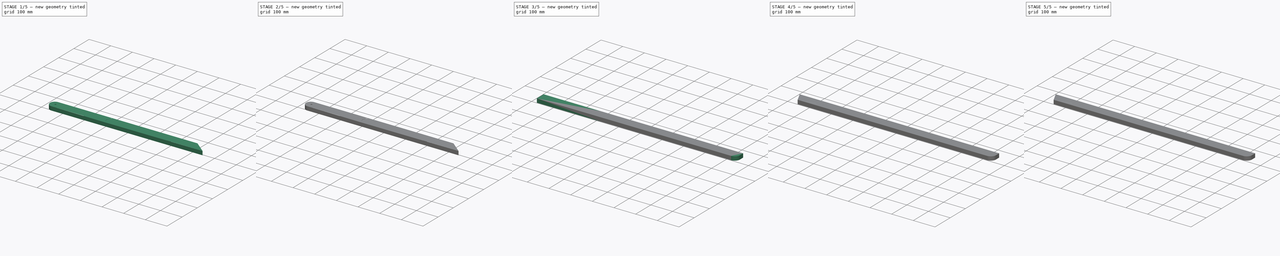
[diagram: build sequence overview — one tinted view per stage of 5, left to right]
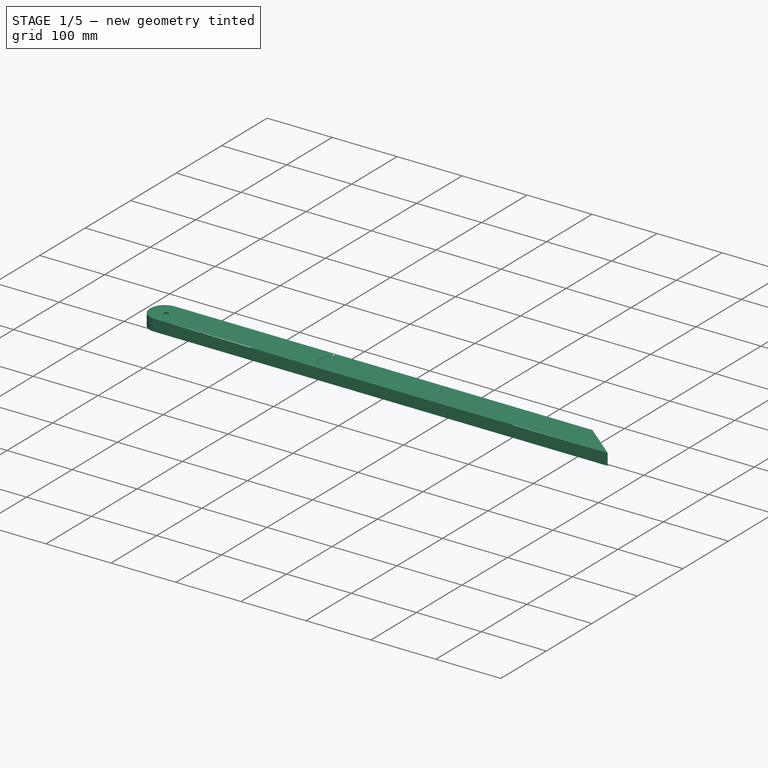
[diagram: stage 1 of 5 — iso view after this stage's code; geometry added in this stage tinted green]
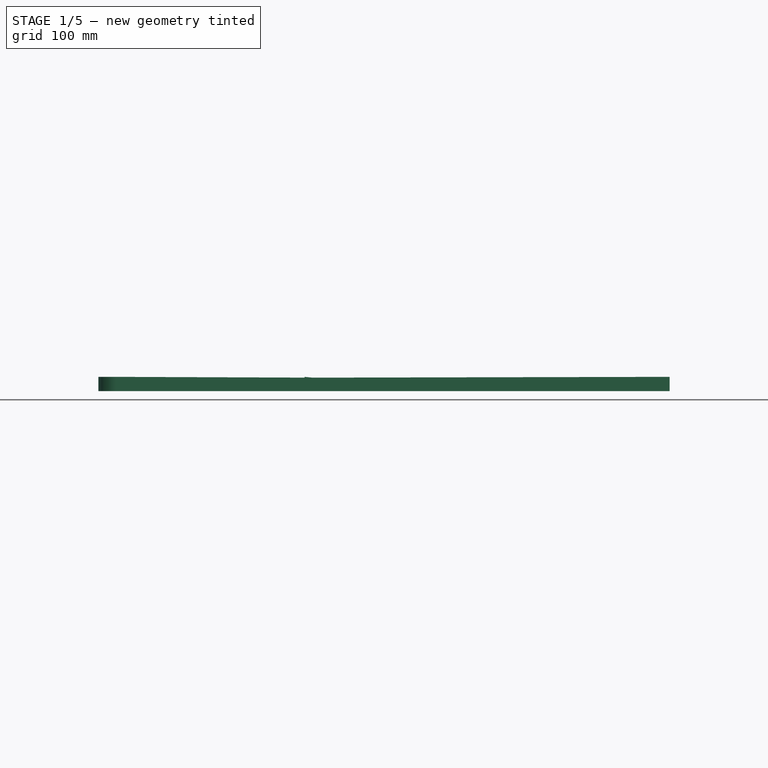
[diagram: stage 1 of 5 — front view after this stage's code; geometry added in this stage tinted green]
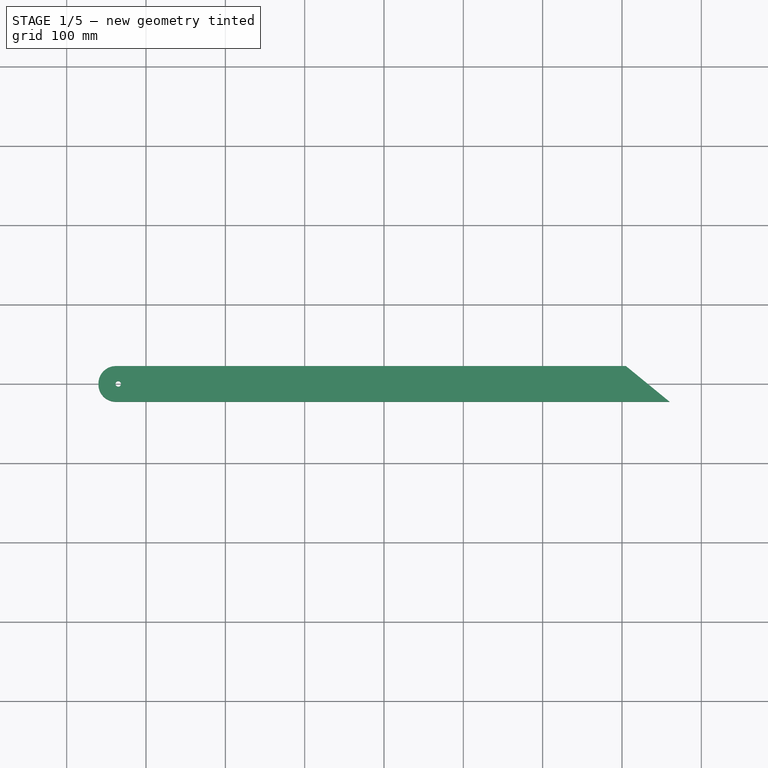
[diagram: stage 1 of 5 — top view after this stage's code; geometry added in this stage tinted green]
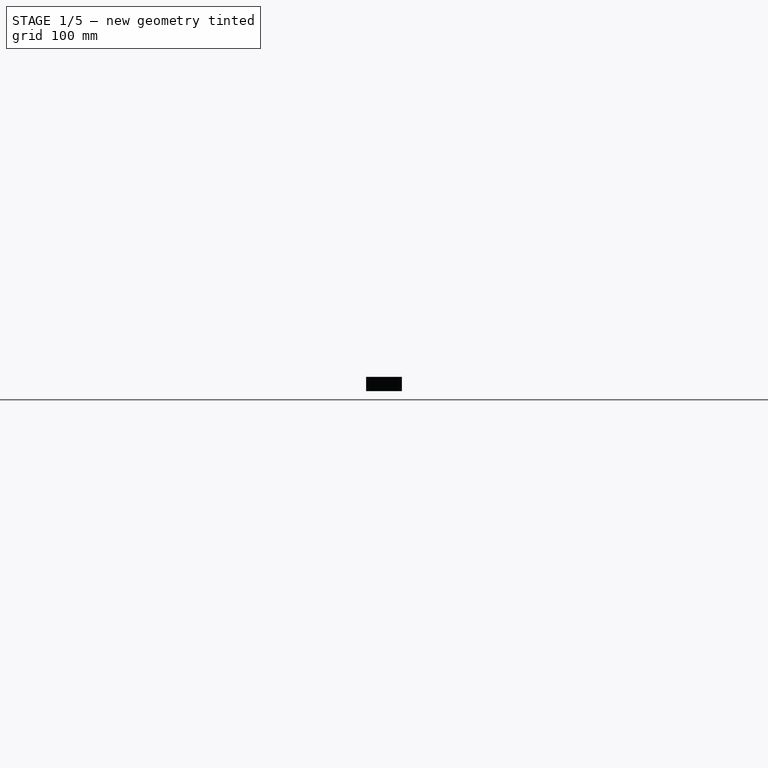
[diagram: stage 1 of 5 — right view after this stage's code; geometry added in this stage tinted green]
FCSTD DOCUMENT  (FreeCAD 0.20R29603 (Git))
Label: montagem_final
License: All rights reserved
LicenseURL: http://en.wikipedia.org/wiki/All_rights_reserved
objects: App::FeaturePython×164, Part::FeaturePython×135, App::Link×23, Sketcher::SketchObject×19, PartDesign::Pocket×13, PartDesign::Pad×7, PartDesign::Fillet×7, PartDesign::Body×7, PartDesign::LinearPattern×1
note: 212 computed .brp shape members not serialized (recipe doc carries the construction recipe); baked Part::Feature solids carry a one-line shape summary decoded from their .brp

FEATURE [PartDesign::Body] Body001  label="37,5 x 4,5 x 1,5"
  Group = -> [Sketch005,Pad001,Fillet001]
  Origin = -> Origin001
  Tip = -> Fillet001
FEATURE [App::Link] Link012  label="pe1"
  LinkPlacement = pos=(0,0,0) rot=(1,0,0;1.5708rad)
  LinkedObject = -> Body002
  Placement = pos=(0,0,0) rot=(1,0,0;1.5708rad)
FEATURE [App::Link] Link013  label="pe2"
  LinkPlacement = pos=(0,321,0) rot=(-1,0,0;4.71239rad)
  LinkedObject = -> Body002
  Placement = pos=(0,321,0) rot=(-1,0,0;4.71239rad)
FEATURE [App::Link] Link014  label="trave"
  LinkPlacement = pos=(-112.5,151.5,22.5) rot=(0,0,1;1.5708rad)
  LinkedObject = -> Body001
  Placement = pos=(-112.5,151.5,22.5) rot=(0,0,1;1.5708rad)
FEATURE [Part::FeaturePython] Parts002  # WARN: FeaturePython — macro-defined, semantics opaque (R4)
  Group = -> [Link012,Link013,Link014]
  GroupMode = 0
FEATURE [Sketcher::SketchObject] Sketch006
  FullyConstrained = true
  MapMode = 5
  Support = -> [XY_Plane002]
  sketch-geometry (5):
    g0: LineSegment StartX=-360 StartY=22.5 StartZ=0 EndX=-360 EndY=-22.5 EndZ=0
    g1: LineSegment StartX=-360 StartY=-22.5 StartZ=0 EndX=360 EndY=-22.5 EndZ=0
    g2: LineSegment StartX=360 StartY=-22.5 StartZ=0 EndX=360 EndY=22.5 EndZ=0
    g3: LineSegment StartX=360 StartY=22.5 StartZ=0 EndX=-360 EndY=22.5 EndZ=0
    g4: GeomPoint X=0 Y=0 Z=0
  constraints (12):
    c: Coincident(g0,g1)
    c: Coincident(g1,g2)
    c: Coincident(g2,g3)
    c: Coincident(g3,g0)
    c: Horizontal(g1)
    c: Horizontal(g3)
    c: Vertical(g0)
    c: Vertical(g2)
    c: Symmetric(g1,g0,g4)
    c: Coincident(g4,g-1)
    c: DistanceY(g2,g2) = 45
    c: DistanceX(g3,g3) = 720
FEATURE [PartDesign::Pad] Pad002
  Direction = (0,0,1)
  Length = 18
  Length2 = 10
  Profile = -> Sketch006
  ReferenceAxis = -> Sketch006 [N_Axis]
  Type = 0
FEATURE [Sketcher::SketchObject] Sketch007
  ExternalGeometry = -> [Pad002]
  FullyConstrained = true
  MapMode = 5
  Placement = pos=(0,0,18) rot=(0,0,1;0rad)
  Support = -> [Pad002]
  sketch-geometry (1):
    g0: Circle CenterX=-335 CenterY=0 CenterZ=0 NormalX=0 NormalY=0 NormalZ=1 AngleXU=0 Radius=3.5
  constraints (3):
    c: PointOnObject(g0,g-1)
    c: Diameter(g0) = 7
    c: DistanceX(g-3,g0) = 25
FEATURE [PartDesign::Pocket] Pocket006
  BaseFeature = -> Pad002
  Direction = (0,0,-1)
  Length = 5
  Length2 = 5
  Profile = -> Sketch007
  ReferenceAxis = -> Sketch007 [N_Axis]
  Type = 1
FEATURE [PartDesign::Fillet] Fillet002
  Base = -> Pocket006 [Edge2,Edge1]
  BaseFeature = -> Pocket006
  Radius = 22
  SupportTransform = false
  UseAllEdges = false
FEATURE [Sketcher::SketchObject] Sketch008
  ExternalGeometry = -> [Fillet002]
  FullyConstrained = true
  MapMode = 5
  Placement = pos=(0,0,18) rot=(0,0,1;0rad)
  Support = -> [Fillet002]
  sketch-geometry (3):
    g0: LineSegment StartX=-90 StartY=-22.5 StartZ=0 EndX=-90 EndY=22.5 EndZ=0
    g1: LineSegment StartX=-90 StartY=22.5 StartZ=0 EndX=-100 EndY=0 EndZ=0
    g2: LineSegment StartX=-100 StartY=0 StartZ=0 EndX=-90 EndY=-22.5 EndZ=0
  constraints (9):
    c: PointOnObject(g0,g-3)
    c: PointOnObject(g0,g-4)
    c: Vertical(g0)
    c: Coincident(g0,g1)
    c: PointOnObject(g1,g-1)
    c: Coincident(g1,g2)
    c: Coincident(g2,g0)
    c: DistanceX(g-5,g0) = 270
    c: DistanceX(g1,g0) = 10
FEATURE [PartDesign::Pocket] Pocket007
  BaseFeature = -> Fillet002
  Direction = (0,0,-1)
  Length = 1
  Length2 = 5
  Profile = -> Sketch008
  ReferenceAxis = -> Sketch008 [N_Axis]
  Type = 0
FEATURE [Sketcher::SketchObject] Sketch009
  ExternalGeometry = -> [Pocket007]
  FullyConstrained = true
  MapMode = 5
  Placement = pos=(0,0,18) rot=(0,0,1;0rad)
  Support = -> [Pocket007]
  sketch-geometry (3):
    g0: LineSegment StartX=360 StartY=22.5 StartZ=0 EndX=305 EndY=22.5 EndZ=0
    g1: LineSegment StartX=305 StartY=22.5 StartZ=0 EndX=360 EndY=-22.5 EndZ=0
    g2: LineSegment StartX=360 StartY=22.5 StartZ=0 EndX=360 EndY=-22.5 EndZ=0
  constraints (7):
    c: Coincident(g-4,g0)
    c: PointOnObject(g0,g-3)
    c: Coincident(g0,g1)
    c: Coincident(g1,g-4)
    c: DistanceX(g0,g0) = 55
    c: Coincident(g2,g0)
    c: Coincident(g2,g1)
FEATURE [PartDesign::Pocket] Pocket005
  BaseFeature = -> Pocket007
  Direction = (0,0,-1)
  Length = 5
  Length2 = 5
  Profile = -> Sketch009
  ReferenceAxis = -> Sketch009 [N_Axis]
  Type = 1
FEATURE [PartDesign::Body] Body005  label="Anteparo"
  Group = -> [Sketch016,Pad005,Fillet004,Sketch017,Pocket012]
  Origin = -> Origin005
  Tip = -> Pocket012
FEATURE [Sketcher::SketchObject] Sketch018
  FullyConstrained = true
  MapMode = 5
  Support = -> [XY_Plane006]
  sketch-geometry (5):
    g0: LineSegment StartX=-192 StartY=22.5 StartZ=0 EndX=-192 EndY=-22.5 EndZ=0
    g1: LineSegment StartX=-192 StartY=-22.5 StartZ=0 EndX=192 EndY=-22.5 EndZ=0
    g2: LineSegment StartX=192 StartY=-22.5 StartZ=0 EndX=192 EndY=22.5 EndZ=0
    g3: LineSegment StartX=192 StartY=22.5 StartZ=0 EndX=-192 EndY=22.5 EndZ=0
    g4: GeomPoint X=0 Y=0 Z=0
  constraints (12):
    c: Coincident(g0,g1)
    c: Coincident(g1,g2)
    c: Coincident(g2,g3)
    c: Coincident(g3,g0)
    c: Horizontal(g1)
    c: Horizontal(g3)
    c: Vertical(g0)
    c: Vertical(g2)
    c: Symmetric(g1,g0,g4)
    c: Coincident(g4,g-1)
    c: DistanceY(g0,g0) = 45
    c: DistanceX(g3,g3) = 384
FEATURE [PartDesign::Pad] Pad006
  Direction = (0,0,1)
  Length = 15
  Length2 = 10
  Profile = -> Sketch018
  ReferenceAxis = -> Sketch018 [N_Axis]
  Type = 0
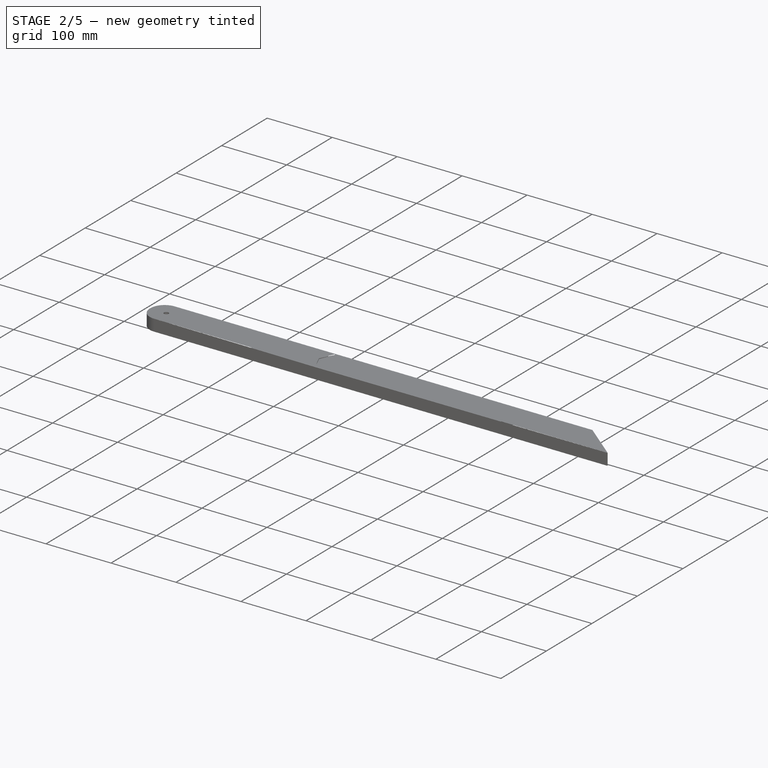
[diagram: stage 2 of 5 — iso view after this stage's code; geometry added in this stage tinted green]
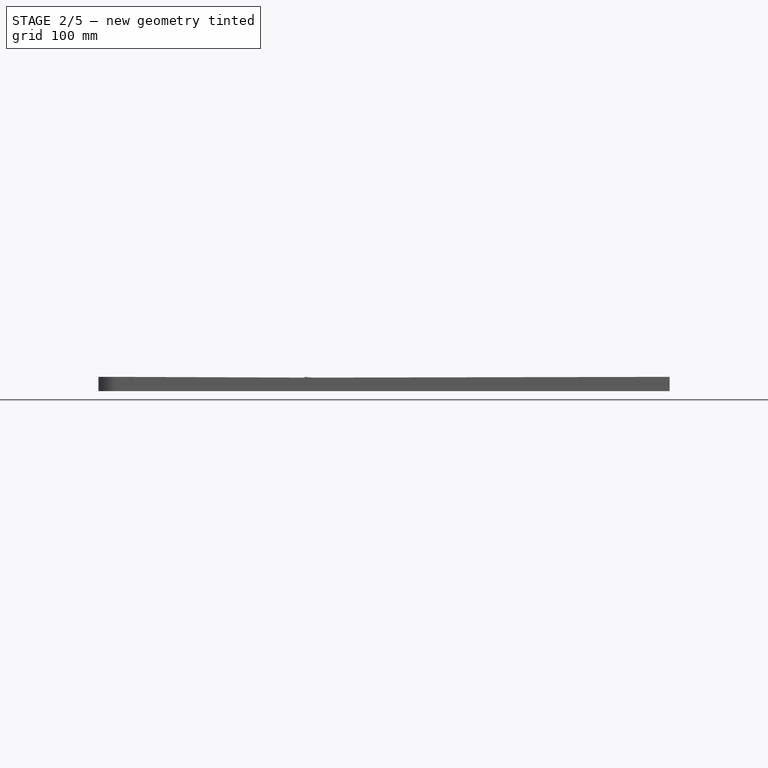
[diagram: stage 2 of 5 — front view after this stage's code; geometry added in this stage tinted green]
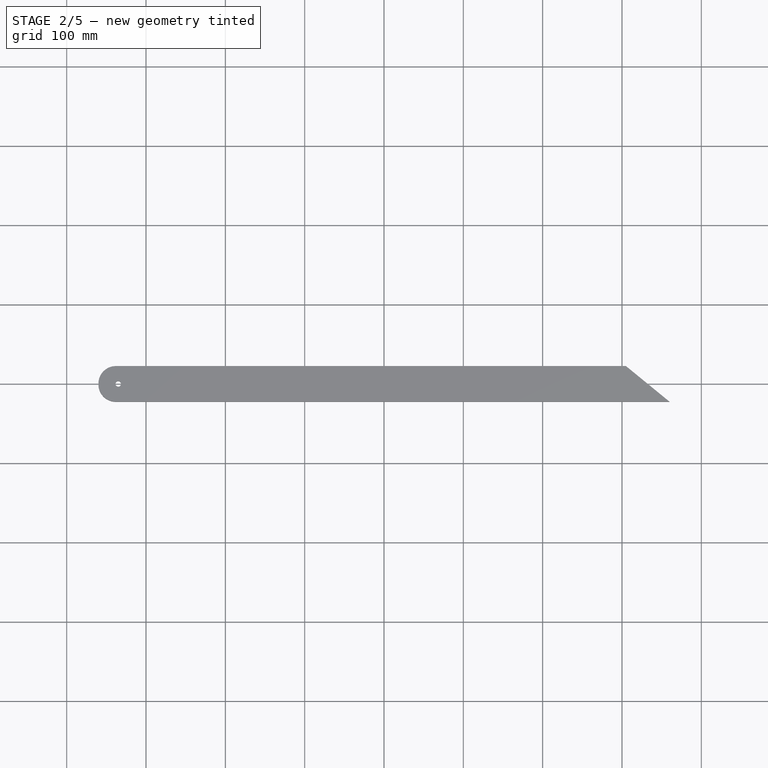
[diagram: stage 2 of 5 — top view after this stage's code; geometry added in this stage tinted green]
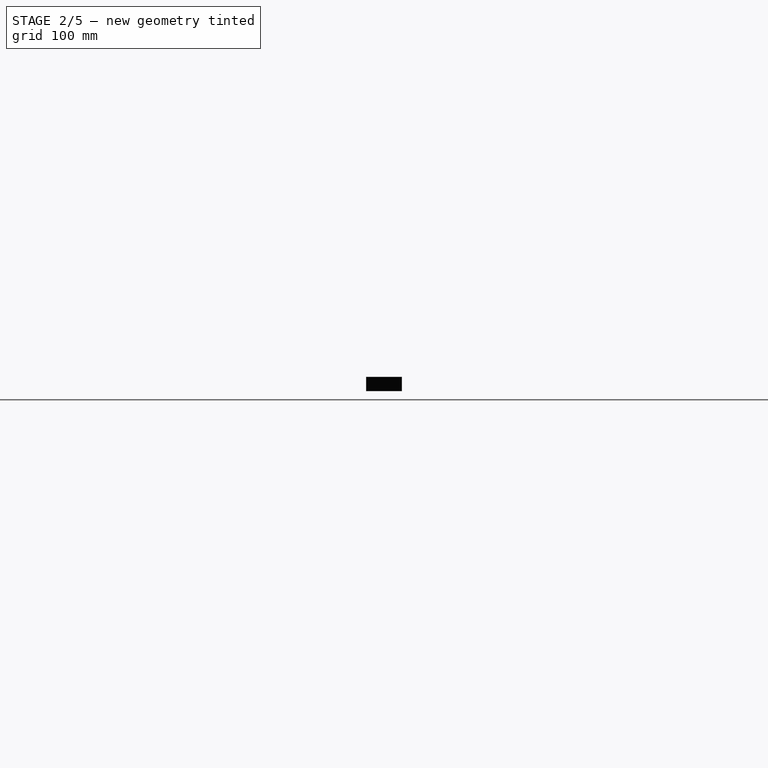
[diagram: stage 2 of 5 — right view after this stage's code; geometry added in this stage tinted green]
FEATURE [PartDesign::Body] Body004  label="42 x 4,5 x 1,5"
  Group = -> [Sketch015,Pad004]
  Origin = -> Origin004
  Tip = -> Pad004
FEATURE [Sketcher::SketchObject] Sketch016
  FullyConstrained = true
  MapMode = 5
  Support = -> [XY_Plane005]
  sketch-geometry (5):
    g0: LineSegment StartX=-50 StartY=12.5 StartZ=0 EndX=-50 EndY=-12.5 EndZ=0
    g1: LineSegment StartX=-50 StartY=-12.5 StartZ=0 EndX=50 EndY=-12.5 EndZ=0
    g2: LineSegment StartX=50 StartY=-12.5 StartZ=0 EndX=50 EndY=12.5 EndZ=0
    g3: LineSegment StartX=50 StartY=12.5 StartZ=0 EndX=-50 EndY=12.5 EndZ=0
    g4: GeomPoint X=0 Y=0 Z=0
  constraints (12):
    c: Coincident(g0,g1)
    c: Coincident(g1,g2)
    c: Coincident(g2,g3)
    c: Coincident(g3,g0)
    c: Horizontal(g1)
    c: Horizontal(g3)
    c: Vertical(g0)
    c: Vertical(g2)
    c: Symmetric(g1,g0,g4)
    c: Coincident(g4,g-1)
    c: DistanceX(g3,g3) = 100
    c: DistanceY(g0,g0) = 25
FEATURE [PartDesign::Pad] Pad005
  Direction = (0,0,1)
  Length = 15
  Length2 = 10
  Profile = -> Sketch016
  ReferenceAxis = -> Sketch016 [N_Axis]
  Type = 0
FEATURE [PartDesign::Fillet] Fillet004
  Base = -> Pad005 [Edge5]
  BaseFeature = -> Pad005
  Radius = 24
  SupportTransform = false
  UseAllEdges = false
FEATURE [Sketcher::SketchObject] Sketch017
  ExternalGeometry = -> [Fillet004]
  FullyConstrained = true
  MapMode = 5
  Placement = pos=(0,0,15) rot=(0,0,1;0rad)
  Support = -> [Fillet004]
  sketch-geometry (3):
    g0: LineSegment StartX=50 StartY=12.5 StartZ=0 EndX=-50 EndY=-2.5 EndZ=0
    g1: LineSegment StartX=-50 StartY=-2.5 StartZ=0 EndX=-50 EndY=12.5 EndZ=0
    g2: LineSegment StartX=-50 StartY=12.5 StartZ=0 EndX=50 EndY=12.5 EndZ=0
  constraints (7):
    c: Coincident(g-3,g0)
    c: Coincident(g0,g1)
    c: Coincident(g1,g-3)
    c: Vertical(g1)
    c: Coincident(g1,g2)
    c: Coincident(g2,g0)
    c: DistanceY(g1,g1) = 15
FEATURE [PartDesign::Pocket] Pocket012
  BaseFeature = -> Fillet004
  Direction = (0,0,-1)
  Length = 5
  Length2 = 5
  Profile = -> Sketch017
  ReferenceAxis = -> Sketch017 [N_Axis]
  Type = 1
FEATURE [PartDesign::Fillet] Fillet006
  Base = -> Pad006 [Edge7]
  BaseFeature = -> Pad006
  Radius = 8
  SupportTransform = false
  UseAllEdges = false
FEATURE [PartDesign::Fillet] Fillet005
  Base = -> Fillet006 [Edge13]
  BaseFeature = -> Fillet006
  Radius = 8
  SupportTransform = false
  UseAllEdges = false
FEATURE [PartDesign::Body] Body006  label="38,4 X 4,5 X 1,5"
  Group = -> [Sketch018,Pad006,Fillet006,Fillet005]
  Origin = -> Origin006
  Tip = -> Fillet005
FEATURE [Part::FeaturePython] Assembly  label="Cadeira"  # WARN: FeaturePython — macro-defined, semantics opaque (R4)
  AutoRelax = true
  BuildShape = 0
  Freeze = false
  Group = -> [Constraints,Elements,Parts]
  Verbose = false
  _SolverType = 1
  _Version = 1
FEATURE [App::FeaturePython] Constraints  # WARN: FeaturePython — macro-defined, semantics opaque (R4)
  Group = -> [Constraint,Constraint001,Constraint002,Constraint003,Constraint004,Constraint005,Constraint006,Constraint007]
  _Version = 1
FEATURE [App::FeaturePython] Elements  # WARN: FeaturePython — macro-defined, semantics opaque (R4)
  Group = -> [_Element,_Element001,_Element002,_Element003,_Element004,_Element005,_Element006,_Element007,_Element008,_Element009,_Element010,_Element011,_Element012,_Element013,_Element014,_Element015,_Element016,_Element017,_Element018,_Element019]
FEATURE [App::FeaturePython] Constraint  label="Locked"  # WARN: FeaturePython — macro-defined, semantics opaque (R4)
  Disabled = false
  Group = -> [ElementLink]
  _ConstraintType = 0
  _Parent = -> Constraints
FEATURE [App::FeaturePython] ElementLink  label="face_primeira_ripa (fixa)@assento@"  # link proxy (typed FeaturePython)
  LinkTransform = true
  LinkedObject = -> _Element
  _Parent = -> Constraint
FEATURE [Part::FeaturePython] _Element  label="face_primeira_ripa (fixa)@assento@"  # link proxy (typed FeaturePython)
  Detach = false
  LinkTransform = true
  LinkedObject = -> Link [1.$face_primeira_ripa (fixa).]
  _Parent = -> Elements
FEATURE [App::FeaturePython] Constraint001  label="AxialAlignment"  # WARN: FeaturePython — macro-defined, semantics opaque (R4)
  Angle = 0
  AnglePitch = 0
  AngleRoll = 0
  Disabled = false
  Group = -> [ElementLink001,ElementLink002]
  LockAngle = false
  Multiply = false
  _ConstraintType = 36
  _Parent = -> Constraints
FEATURE [App::FeaturePython] ElementLink001  label="_Element001"  # link proxy (typed FeaturePython)
  LinkTransform = true
  LinkedObject = -> _Element001
  _Parent = -> Constraint001
FEATURE [Part::FeaturePython] _Element001  # link proxy (typed FeaturePython)
  Detach = false
  LinkTransform = true
  LinkedObject = -> Link001 [1.$Element.]
  _Parent = -> Elements
FEATURE [App::FeaturePython] ElementLink002  label="_Element002"  # link proxy (typed FeaturePython)
  LinkTransform = true
  LinkedObject = -> _Element002
  _Parent = -> Constraint001
FEATURE [Part::FeaturePython] _Element002  # link proxy (typed FeaturePython)
  Detach = false
  LinkTransform = true
  LinkedObject = -> Link [1.$Element.]
  _Parent = -> Elements
FEATURE [App::FeaturePython] Constraint002  label="PointsDistance"  # WARN: FeaturePython — macro-defined, semantics opaque (R4)
  Cascade = false
  Disabled = false
  Distance = 24
  Group = -> [ElementLink003,ElementLink004]
  _ConstraintType = 44
  _Parent = -> Constraints
FEATURE [App::FeaturePython] ElementLink003  label="_Element003"  # link proxy (typed FeaturePython)
  LinkTransform = true
  LinkedObject = -> _Element003
  _Parent = -> Constraint002
FEATURE [Part::FeaturePython] _Element003  # link proxy (typed FeaturePython)
  Detach = false
  LinkTransform = true
  LinkedObject = -> Link001 [1.$Element011.]
  _Parent = -> Elements
FEATURE [App::FeaturePython] ElementLink004  label="_Element004"  # link proxy (typed FeaturePython)
  LinkTransform = true
  LinkedObject = -> _Element004
  _Parent = -> Constraint002
FEATURE [Part::FeaturePython] _Element004  # link proxy (typed FeaturePython)
  Detach = false
  LinkTransform = true
  LinkedObject = -> Link [1.$Element001.]
  _Parent = -> Elements
FEATURE [App::FeaturePython] Constraint003  label="PointsDistance001"  # WARN: FeaturePython — macro-defined, semantics opaque (R4)
  Cascade = false
  Disabled = false
  Distance = 25
  Group = -> [ElementLink005,ElementLink006]
  _ConstraintType = 44
  _Parent = -> Constraints
FEATURE [App::FeaturePython] ElementLink005  label="_Element005"  # link proxy (typed FeaturePython)
  LinkTransform = true
  LinkedObject = -> _Element005
  _Parent = -> Constraint003
FEATURE [Part::FeaturePython] _Element005  # link proxy (typed FeaturePython)
  Detach = false
  LinkTransform = true
  LinkedObject = -> Link001 [1.$Element006.]
  _Parent = -> Elements
FEATURE [App::FeaturePython] ElementLink006  label="_Element006"  # link proxy (typed FeaturePython)
  LinkTransform = true
  LinkedObject = -> _Element006
  _Parent = -> Constraint003
FEATURE [Part::FeaturePython] _Element006  # link proxy (typed FeaturePython)
  Detach = false
  LinkTransform = true
  LinkedObject = -> Link [1.$Element002.]
  _Parent = -> Elements
FEATURE [Part::FeaturePython] _Element007  # link proxy (typed FeaturePython)
  Detach = false
  LinkTransform = true
  LinkedObject = -> Link002 [1.$_Element002.]
  _Parent = -> Elements
FEATURE [Part::FeaturePython] _Element008  # link proxy (typed FeaturePython)
  Detach = false
  LinkTransform = true
  LinkedObject = -> Link [1.$Element003.]
  _Parent = -> Elements
FEATURE [Part::FeaturePython] _Element009  # link proxy (typed FeaturePython)
  Detach = false
  LinkTransform = true
  LinkedObject = -> Link002 [1.$Element.]
  _Parent = -> Elements
FEATURE [Part::FeaturePython] _Element010  # link proxy (typed FeaturePython)
  Detach = false
  LinkTransform = true
  LinkedObject = -> Link [1.$Element004.]
  _Parent = -> Elements
FEATURE [Part::FeaturePython] _Element011  # link proxy (typed FeaturePython)
  Detach = false
  LinkTransform = true
  LinkedObject = -> Link002 [1.$_Element010.]
  _Parent = -> Elements
FEATURE [Part::FeaturePython] _Element012  label="015@encosto@"  # link proxy (typed FeaturePython)
  Detach = false
  LinkTransform = true
  LinkedObject = -> Link001 [1.$015.]
  _Parent = -> Elements
FEATURE [App::FeaturePython] Constraint004  label="AxialAlignment001"  # WARN: FeaturePython — macro-defined, semantics opaque (R4)
  Angle = 0
  AnglePitch = 0
  AngleRoll = 0
  Disabled = false
  Group = -> [ElementLink007,ElementLink008]
  LockAngle = false
  Multiply = false
  _ConstraintType = 36
  _Parent = -> Constraints
FEATURE [App::FeaturePython] ElementLink007  label="_Element008"  # link proxy (typed FeaturePython)
  LinkTransform = true
  LinkedObject = -> _Element008
  _Parent = -> Constraint004
FEATURE [App::FeaturePython] ElementLink008  label="_Element007"  # link proxy (typed FeaturePython)
  LinkTransform = true
  LinkedObject = -> _Element007
  _Parent = -> Constraint004
FEATURE [App::FeaturePython] Constraint005  label="PointInPlane"  # WARN: FeaturePython — macro-defined, semantics opaque (R4)
  Disabled = false
  Group = -> [ElementLink009,ElementLink010]
  _ConstraintType = 3
  _Parent = -> Constraints
FEATURE [App::FeaturePython] ElementLink009  label="_Element013"  # link proxy (typed FeaturePython)
  LinkTransform = true
  LinkedObject = -> _Element013
  _Parent = -> Constraint005
FEATURE [Part::FeaturePython] _Element013  # link proxy (typed FeaturePython)
  Detach = false
  LinkTransform = true
  LinkedObject = -> Link002 [1.$Element001.]
  _Parent = -> Elements
FEATURE [App::FeaturePython] ElementLink010  label="_Element010"  # link proxy (typed FeaturePython)
  LinkTransform = true
  LinkedObject = -> _Element010
  _Parent = -> Constraint005
FEATURE [App::FeaturePython] Constraint006  label="AxialAlignment002"  # WARN: FeaturePython — macro-defined, semantics opaque (R4)
  Angle = 0
  AnglePitch = 0
  AngleRoll = 0
  Disabled = false
  Group = -> [ElementLink011,ElementLink012]
  LockAngle = false
  Multiply = false
  _ConstraintType = 36
  _Parent = -> Constraints
FEATURE [App::FeaturePython] ElementLink011  label="_Element014"  # link proxy (typed FeaturePython)
  LinkTransform = true
  LinkedObject = -> _Element014
  _Parent = -> Constraint006
FEATURE [Part::FeaturePython] _Element014  # link proxy (typed FeaturePython)
  Detach = false
  LinkTransform = true
  LinkedObject = -> Link002 [1.$_Element001.]
  _Parent = -> Elements
FEATURE [App::FeaturePython] ElementLink012  label="_Element015"  # link proxy (typed FeaturePython)
  LinkTransform = true
  LinkedObject = -> _Element015
  _Parent = -> Constraint006
FEATURE [Part::FeaturePython] _Element015  # link proxy (typed FeaturePython)
  Detach = false
  LinkTransform = true
  LinkedObject = -> Link [1.$Element005.]
  _Parent = -> Elements
FEATURE [Part::FeaturePython] _Element016  # link proxy (typed FeaturePython)
  Detach = false
  LinkTransform = true
  LinkedObject = -> Link001 [1.$Element016.]
  _Parent = -> Elements
FEATURE [Part::FeaturePython] _Element017  # link proxy (typed FeaturePython)
  Detach = false
  LinkTransform = true
  LinkedObject = -> Link002 [1.$Element002.]
  _Parent = -> Elements
FEATURE [App::FeaturePython] Constraint007  label="PointOnLine"  # WARN: FeaturePython — macro-defined, semantics opaque (R4)
  Disabled = false
  Group = -> [ElementLink013,ElementLink014]
  _ConstraintType = 4
  _Parent = -> Constraints
FEATURE [App::FeaturePython] ElementLink013  label="_Element018"  # link proxy (typed FeaturePython)
  LinkTransform = true
  LinkedObject = -> _Element018
  _Parent = -> Constraint007
FEATURE [Part::FeaturePython] _Element018  # link proxy (typed FeaturePython)
  Detach = false
  LinkTransform = true
  LinkedObject = -> Link001 [1.$Element005.]
  _Parent = -> Elements
FEATURE [App::FeaturePython] ElementLink014  label="_Element019"  # link proxy (typed FeaturePython)
  LinkTransform = true
  LinkedObject = -> _Element019
  _Parent = -> Constraint007
FEATURE [Part::FeaturePython] _Element019  # link proxy (typed FeaturePython)
  Detach = false
  LinkTransform = true
  LinkedObject = -> Link002 [1.$_Element005.]
  _Parent = -> Elements
FEATURE [Part::FeaturePython] Assembly001  label="Assento"  # WARN: FeaturePython — macro-defined, semantics opaque (R4)
  AutoRelax = true
  BuildShape = 0
  Freeze = false
  Group = -> [Constraints001,Elements001,Parts001,Relations]
  Verbose = false
  _SolverType = 1
  _Version = 1
FEATURE [App::FeaturePython] Constraints001  # WARN: FeaturePython — macro-defined, semantics opaque (R4)
  Group = -> [Constraint027,Constraint028,Constraint029,Constraint030,Constraint031,Constraint032,Constraint033,Constraint034,Constraint035,Constraint008]
  _Version = 1
FEATURE [App::FeaturePython] Elements001  # WARN: FeaturePython — macro-defined, semantics opaque (R4)
  Group = -> [_Element020,_Element021,_Element022,_Element023,_Element024,_Element025,_Element026,_Element027,_Element028,_Element029,_Element030,_Element031,_Element032,_Element033,_Element034,_Element067,_Element099,Element,Element001,Element002,Element003,Element004,Element005]
FEATURE [App::FeaturePython] Relations  # WARN: FeaturePython — macro-defined, semantics opaque (R4)
  Constraints = -> Constraints001
  Group = -> [Relation,Relation001,Relation002,Relation003,Relation004,Relation005,Relation006,Relation007,Relation008]
FEATURE [App::FeaturePython] Constraint027  label="Locked001"  # WARN: FeaturePython — macro-defined, semantics opaque (R4)
  Disabled = false
  Group = -> [ElementLink058]
  _ConstraintType = 0
  _Parent = -> Constraints001
FEATURE [App::FeaturePython] Constraint028  label="PointsCoincident"  # WARN: FeaturePython — macro-defined, semantics opaque (R4)
  Disabled = false
  Group = -> [ElementLink059,ElementLink060]
  _ConstraintType = 1
  _Parent = -> Constraints001
FEATURE [App::FeaturePython] Constraint029  label="PointOnLine001"  # WARN: FeaturePython — macro-defined, semantics opaque (R4)
  Disabled = false
  Group = -> [ElementLink061,ElementLink062]
  _ConstraintType = 4
  _Parent = -> Constraints001
FEATURE [App::FeaturePython] Constraint030  label="PlaneAlignment"  # WARN: FeaturePython — macro-defined, semantics opaque (R4)
  Angle = 0
  AnglePitch = 0
  AngleRoll = 0
  Cascade = false
  Disabled = false
  Group = -> [ElementLink063,ElementLink064]
  LockAngle = false
  _ConstraintType = 37
  _Parent = -> Constraints001
FEATURE [App::FeaturePython] Constraint031  label="PointsCoincident001"  # WARN: FeaturePython — macro-defined, semantics opaque (R4)
  Disabled = false
  Group = -> [ElementLink065,ElementLink066]
  _ConstraintType = 1
  _Parent = -> Constraints001
FEATURE [App::FeaturePython] Constraint032  label="PointOnLine002"  # WARN: FeaturePython — macro-defined, semantics opaque (R4)
  Disabled = false
  Group = -> [ElementLink067,ElementLink068]
  _ConstraintType = 4
  _Parent = -> Constraints001
FEATURE [App::FeaturePython] Constraint033  label="PlaneAlignment001"  # WARN: FeaturePython — macro-defined, semantics opaque (R4)
  Angle = 0
  AnglePitch = 0
  AngleRoll = 0
  Cascade = false
  Disabled = false
  Group = -> [ElementLink069,ElementLink070]
  LockAngle = false
  _ConstraintType = 37
  _Parent = -> Constraints001
FEATURE [App::FeaturePython] Constraint034  label="PointsCoincident002"  # WARN: FeaturePython — macro-defined, semantics opaque (R4)
  Disabled = false
  Group = -> [ElementLink071,ElementLink072]
  _ConstraintType = 1
  _Parent = -> Constraints001
FEATURE [App::FeaturePython] Constraint035  label="PointOnLine003"  # WARN: FeaturePython — macro-defined, semantics opaque (R4)
  Disabled = false
  Group = -> [ElementLink073,ElementLink015]
  _ConstraintType = 4
  _Parent = -> Constraints001
FEATURE [App::FeaturePython] Constraint008  label="PlaneAlignment002"  # WARN: FeaturePython — macro-defined, semantics opaque (R4)
  Angle = 0
  AnglePitch = 0
  AngleRoll = 0
  Cascade = false
  Disabled = false
  Group = -> [ElementLink016,ElementLink017]
  LockAngle = false
  _ConstraintType = 37
  _Parent = -> Constraints001
FEATURE [Part::FeaturePython] _Element020  label="p1_1"  # link proxy (typed FeaturePython)
  Detach = false
  LinkTransform = true
  LinkedObject = -> Link004 [Fillet001.Vertex2]
  _Parent = -> Elements001
FEATURE [Part::FeaturePython] _Element021  label="p1_2"  # link proxy (typed FeaturePython)
  Detach = false
  LinkTransform = true
  LinkedObject = -> Link003 [Fillet.Vertex4]
  _Parent = -> Elements001
FEATURE [Part::FeaturePython] _Element022  label="p1_3"  # link proxy (typed FeaturePython)
  Detach = false
  LinkTransform = true
  LinkedObject = -> Link004 [Fillet001.Vertex4]
  _Parent = -> Elements001
FEATURE [Part::FeaturePython] _Element023  label="l1"  # link proxy (typed FeaturePython)
  Detach = false
  LinkTransform = true
  LinkedObject = -> Link003 [Fillet.Edge15]
  _Parent = -> Elements001
FEATURE [Part::FeaturePython] _Element024  label="plano2"  # link proxy (typed FeaturePython)
  Detach = false
  LinkTransform = true
  LinkedObject = -> Link004 [Fillet001.Face4]
  _Parent = -> Elements001
FEATURE [Part::FeaturePython] _Element025  label="plano1"  # link proxy (typed FeaturePython)
  Detach = false
  LinkTransform = true
  LinkedObject = -> Link003 [Fillet.Face4]
  _Parent = -> Elements001
FEATURE [Part::FeaturePython] _Element026  label="p2_1"  # link proxy (typed FeaturePython)
  Detach = false
  LinkTransform = true
  LinkedObject = -> Link005 [Fillet001.Vertex4]
  _Parent = -> Elements001
FEATURE [Part::FeaturePython] _Element027  label="p2_2"  # link proxy (typed FeaturePython)
  Detach = false
  LinkTransform = true
  LinkedObject = -> Link003 [Fillet.Vertex12]
  _Parent = -> Elements001
FEATURE [Part::FeaturePython] _Element028  label="p2_3"  # link proxy (typed FeaturePython)
  Detach = false
  LinkTransform = true
  LinkedObject = -> Link005 [Fillet001.Vertex2]
  _Parent = -> Elements001
FEATURE [Part::FeaturePython] _Element029  label="plano3"  # link proxy (typed FeaturePython)
  Detach = false
  LinkTransform = true
  LinkedObject = -> Link005 [Fillet001.Face4]
  _Parent = -> Elements001
FEATURE [Part::FeaturePython] _Element030  label="p3_1"  # link proxy (typed FeaturePython)
  Detach = false
  LinkTransform = true
  LinkedObject = -> Link005 [Fillet001.Vertex10]
  _Parent = -> Elements001
FEATURE [Part::FeaturePython] _Element031  label="p3_2"  # link proxy (typed FeaturePython)
  Detach = false
  LinkTransform = true
  LinkedObject = -> Link006 [Fillet.Vertex6]
  _Parent = -> Elements001
FEATURE [Part::FeaturePython] _Element032  label="p3_3"  # link proxy (typed FeaturePython)
  Detach = false
  LinkTransform = true
  LinkedObject = -> Link005 [Fillet001.Vertex8]
  _Parent = -> Elements001
FEATURE [Part::FeaturePython] _Element033  label="l2"  # link proxy (typed FeaturePython)
  Detach = false
  LinkTransform = true
  LinkedObject = -> Link006 [Fillet.Edge6]
  _Parent = -> Elements001
FEATURE [Part::FeaturePython] _Element034  label="plano4"  # link proxy (typed FeaturePython)
  Detach = false
  LinkTransform = true
  LinkedObject = -> Link006 [Fillet.Face4]
  _Parent = -> Elements001
FEATURE [Part::FeaturePython] _Element067  label="face_primeira_ripa (fixa)"  # link proxy (typed FeaturePython)
  Detach = false
  LinkTransform = true
  LinkedObject = -> Link004 [Fillet001.Face5]
  _Parent = -> Elements001
FEATURE [Part::FeaturePython] _Element099  label="p4_1"  # link proxy (typed FeaturePython)
  Detach = false
  LinkTransform = true
  LinkedObject = -> Link004 [Fillet001.Vertex10]
  _Parent = -> Elements001
FEATURE [Part::FeaturePython] Element  # link proxy (typed FeaturePython)
  Detach = false
  LinkTransform = true
  LinkedObject = -> Link003 [Pocket004.Face18]
  _Parent = -> Elements001
FEATURE [Part::FeaturePython] Element001  # link proxy (typed FeaturePython)
  Detach = false
  LinkTransform = true
  LinkedObject = -> Link003 [Pocket004.Edge34]
  _Parent = -> Elements001
FEATURE [Part::FeaturePython] Element002  # link proxy (typed FeaturePython)
  Detach = false
  LinkTransform = true
  LinkedObject = -> Link006 [Pocket004.Edge32]
  _Parent = -> Elements001
FEATURE [Part::FeaturePython] Element003  # link proxy (typed FeaturePython)
  Detach = false
  LinkTransform = true
  LinkedObject = -> Link003 [Pocket004.Face17]
  _Parent = -> Elements001
FEATURE [Part::FeaturePython] Element004  # link proxy (typed FeaturePython)
  Detach = false
  LinkTransform = true
  LinkedObject = -> Link003 [Pocket004.Face2]
  _Parent = -> Elements001
FEATURE [Part::FeaturePython] Element005  # link proxy (typed FeaturePython)
  Detach = false
  LinkTransform = true
  LinkedObject = -> Link006 [Pocket004.Face17]
  _Parent = -> Elements001
FEATURE [App::FeaturePython] Relation  label="35 X 4,5 X 1,8 (1)"  # WARN: FeaturePython — macro-defined, semantics opaque (R4)
  Count = 0
  Group = -> [Constraint028,Constraint029,Constraint030,Constraint031,Constraint032,Constraint033]
  Index = 0
  Part = -> Link003
FEATURE [App::FeaturePython] Relation001  label="37,5 X 4,5 X 1,5 (1)"  # WARN: FeaturePython — macro-defined, semantics opaque (R4)
  Count = 0
  Group = -> [Constraint028,Constraint029,Constraint030,Constraint027]
  Index = 0
  Part = -> Link004
FEATURE [App::FeaturePython] Relation002  label="37,5 X 4,5 X 1,5 (2)"  # WARN: FeaturePython — macro-defined, semantics opaque (R4)
  Count = 0
  Group = -> [Constraint031,Constraint032,Constraint033,Constraint034,Constraint035,Constraint008]
  Index = 0
  Part = -> Link005
FEATURE [App::FeaturePython] Relation003  label="35 X 4,5 X 1,8 (2)"  # WARN: FeaturePython — macro-defined, semantics opaque (R4)
  Count = 0
  Group = -> [Constraint034,Constraint035,Constraint008]
  Index = 0
  Part = -> Link006
FEATURE [App::FeaturePython] ElementLink058  label="face_primeira_ripa (fixa)"  # link proxy (typed FeaturePython)
  LinkTransform = true
  LinkedObject = -> _Element067
  _Parent = -> Constraint027
FEATURE [App::FeaturePython] ElementLink059  label="p1_1"  # link proxy (typed FeaturePython)
  LinkTransform = true
  LinkedObject = -> _Element020
  _Parent = -> Constraint028
FEATURE [App::FeaturePython] ElementLink060  label="p1_2"  # link proxy (typed FeaturePython)
  LinkTransform = true
  LinkedObject = -> _Element021
  _Parent = -> Constraint028
FEATURE [App::FeaturePython] ElementLink061  label="p1_3"  # link proxy (typed FeaturePython)
  LinkTransform = true
  LinkedObject = -> _Element022
  _Parent = -> Constraint029
FEATURE [App::FeaturePython] ElementLink062  label="l1"  # link proxy (typed FeaturePython)
  LinkTransform = true
  LinkedObject = -> _Element023
  _Parent = -> Constraint029
FEATURE [App::FeaturePython] ElementLink063  label="plano1"  # link proxy (typed FeaturePython)
  LinkTransform = true
  LinkedObject = -> _Element025
  _Parent = -> Constraint030
FEATURE [App::FeaturePython] ElementLink064  label="plano2"  # link proxy (typed FeaturePython)
  LinkTransform = true
  LinkedObject = -> _Element024
  _Parent = -> Constraint030
FEATURE [App::FeaturePython] ElementLink065  label="p2_1"  # link proxy (typed FeaturePython)
  LinkTransform = true
  LinkedObject = -> _Element026
  _Parent = -> Constraint031
FEATURE [App::FeaturePython] ElementLink066  label="p2_2"  # link proxy (typed FeaturePython)
  LinkTransform = true
  LinkedObject = -> _Element027
  _Parent = -> Constraint031
FEATURE [App::FeaturePython] ElementLink067  label="p2_3"  # link proxy (typed FeaturePython)
  LinkTransform = true
  LinkedObject = -> _Element028
  _Parent = -> Constraint032
FEATURE [App::FeaturePython] ElementLink068  label="l1"  # link proxy (typed FeaturePython)
  LinkTransform = true
  LinkedObject = -> _Element023
  _Parent = -> Constraint032
FEATURE [App::FeaturePython] ElementLink069  label="plano1"  # link proxy (typed FeaturePython)
  LinkTransform = true
  LinkedObject = -> _Element025
  _Parent = -> Constraint033
FEATURE [App::FeaturePython] ElementLink070  label="plano3"  # link proxy (typed FeaturePython)
  LinkTransform = true
  LinkedObject = -> _Element029
  _Parent = -> Constraint033
FEATURE [App::FeaturePython] ElementLink071  label="p3_1"  # link proxy (typed FeaturePython)
  LinkTransform = true
  LinkedObject = -> _Element030
  _Parent = -> Constraint034
FEATURE [App::FeaturePython] ElementLink072  label="p3_2"  # link proxy (typed FeaturePython)
  LinkTransform = true
  LinkedObject = -> _Element031
  _Parent = -> Constraint034
FEATURE [App::FeaturePython] ElementLink073  label="p3_3"  # link proxy (typed FeaturePython)
  LinkTransform = true
  LinkedObject = -> _Element032
  _Parent = -> Constraint035
FEATURE [App::FeaturePython] ElementLink015  label="l2"  # link proxy (typed FeaturePython)
  LinkTransform = true
  LinkedObject = -> _Element033
  _Parent = -> Constraint035
FEATURE [App::FeaturePython] ElementLink016  label="plano3"  # link proxy (typed FeaturePython)
  LinkTransform = true
  LinkedObject = -> _Element029
  _Parent = -> Constraint008
FEATURE [App::FeaturePython] ElementLink017  label="plano4"  # link proxy (typed FeaturePython)
  LinkTransform = true
  LinkedObject = -> _Element034
  _Parent = -> Constraint008
FEATURE [Part::FeaturePython] Assembly002  label="Pe"  # WARN: FeaturePython — macro-defined, semantics opaque (R4)
  AutoRelax = true
  BuildShape = 0
  Freeze = false
  Group = -> [Constraints002,Elements002,Parts002]
  Verbose = false
  _SolverType = 1
  _Version = 1
FEATURE [App::FeaturePython] Constraints002  # WARN: FeaturePython — macro-defined, semantics opaque (R4)
  Group = -> [Constraint051,Constraint036,Constraint037,Constraint038,Constraint009,Constraint010,Constraint011,Constraint012]
  _Version = 1
FEATURE [App::FeaturePython] Elements002  # WARN: FeaturePython — macro-defined, semantics opaque (R4)
  Group = -> [_Element100,_Element101,_Element102,_Element103,_Element104,_Element105,_Element106,_Element107,_Element108,_Element109,_Element110,Element006,_Element111,_Element112,_Element113,_Element114,Element007,Element008,_Element136]
FEATURE [App::FeaturePython] Constraint036  label="AxialAlignment003"  # WARN: FeaturePython — macro-defined, semantics opaque (R4)
  Angle = 0
  AnglePitch = 0
  AngleRoll = 0
  Disabled = false
  Group = -> [ElementLink074,ElementLink075]
  LockAngle = false
  Multiply = false
  _ConstraintType = 36
  _Parent = -> Constraints002
FEATURE [App::FeaturePython] Constraint037  label="PointOnLine004"  # WARN: FeaturePython — macro-defined, semantics opaque (R4)
  Disabled = false
  Group = -> [ElementLink076,ElementLink077]
  _ConstraintType = 4
  _Parent = -> Constraints002
FEATURE [App::FeaturePython] Constraint038  label="PointOnLine005"  # WARN: FeaturePython — macro-defined, semantics opaque (R4)
  Disabled = false
  Group = -> [ElementLink078,ElementLink079]
  _ConstraintType = 4
  _Parent = -> Constraints002
FEATURE [App::FeaturePython] Constraint009  label="PlaneAlignment003"  # WARN: FeaturePython — macro-defined, semantics opaque (R4)
  Angle = 0
  AnglePitch = 0
  AngleRoll = 0
  Cascade = false
  Disabled = false
  Group = -> [ElementLink018,ElementLink019]
  LockAngle = false
  _ConstraintType = 37
  _Parent = -> Constraints002
FEATURE [App::FeaturePython] Constraint010  label="PlaneAlignment004"  # WARN: FeaturePython — macro-defined, semantics opaque (R4)
  Angle = 0
  AnglePitch = 0
  AngleRoll = 0
  Cascade = false
  Disabled = false
  Group = -> [ElementLink020,ElementLink021]
  LockAngle = false
  _ConstraintType = 37
  _Parent = -> Constraints002
FEATURE [App::FeaturePython] Constraint011  label="PointsDistance002"  # WARN: FeaturePython — macro-defined, semantics opaque (R4)
  Cascade = false
  Disabled = false
  Distance = 18
  Group = -> [ElementLink022,ElementLink023]
  _ConstraintType = 44
  _Parent = -> Constraints002
FEATURE [App::FeaturePython] Constraint012  label="PointsDistance003"  # WARN: FeaturePython — macro-defined, semantics opaque (R4)
  Cascade = false
  Disabled = false
  Distance = 36
  Group = -> [ElementLink024,ElementLink025]
  _ConstraintType = 44
  _Parent = -> Constraints002
FEATURE [Part::FeaturePython] _Element100  label="_Element"  # link proxy (typed FeaturePython)
  Detach = false
  LinkTransform = true
  LinkedObject = -> Link012 [Pocket005.Face8]
  _Parent = -> Elements002
FEATURE [Part::FeaturePython] _Element101  label="_Element001"  # link proxy (typed FeaturePython)
  Detach = false
  LinkTransform = true
  LinkedObject = -> Link012 [Pocket005.Face9]
  _Parent = -> Elements002
FEATURE [Part::FeaturePython] _Element102  label="_Element002"  # link proxy (typed FeaturePython)
  Detach = false
  LinkTransform = true
  LinkedObject = -> Link013 [Pocket005.Face9]
  _Parent = -> Elements002
FEATURE [Part::FeaturePython] _Element103  label="_Element003"  # link proxy (typed FeaturePython)
  Detach = false
  LinkTransform = true
  LinkedObject = -> Link014 [Fillet001.Face4]
  _Parent = -> Elements002
FEATURE [Part::FeaturePython] _Element104  label="_Element004"  # link proxy (typed FeaturePython)
  Detach = false
  LinkTransform = true
  LinkedObject = -> Link012 [Pocket005.Vertex14]
  _Parent = -> Elements002
FEATURE [Part::FeaturePython] _Element105  label="_Element005"  # link proxy (typed FeaturePython)
  Detach = false
  LinkTransform = true
  LinkedObject = -> Link014 [Fillet001.Edge12]
  _Parent = -> Elements002
FEATURE [Part::FeaturePython] _Element106  label="_Element006"  # link proxy (typed FeaturePython)
  Detach = false
  LinkTransform = true
  LinkedObject = -> Link013 [Pocket005.Vertex14]
  _Parent = -> Elements002
FEATURE [Part::FeaturePython] _Element107  label="_Element007"  # link proxy (typed FeaturePython)
  Detach = false
  LinkTransform = true
  LinkedObject = -> Link014 [Fillet001.Vertex4]
  _Parent = -> Elements002
FEATURE [Part::FeaturePython] _Element108  label="_Element008"  # link proxy (typed FeaturePython)
  Detach = false
  LinkTransform = true
  LinkedObject = -> Link012 [Pocket005.Edge8]
  _Parent = -> Elements002
FEATURE [Part::FeaturePython] _Element109  label="_Element009"  # link proxy (typed FeaturePython)
  Detach = false
  LinkTransform = true
  LinkedObject = -> Link014 [Fillet001.Vertex10]
  _Parent = -> Elements002
FEATURE [Part::FeaturePython] _Element110  label="_Element010"  # link proxy (typed FeaturePython)
  Detach = false
  LinkTransform = true
  LinkedObject = -> Link013 [Pocket005.Face8]
  _Parent = -> Elements002
FEATURE [Part::FeaturePython] Element006  label="Element"  # link proxy (typed FeaturePython)
  Detach = false
  LinkTransform = true
  LinkedObject = -> Link013 [Pocket005.Vertex15]
  _Parent = -> Elements002
FEATURE [Part::FeaturePython] _Element111  label="_Element011"  # link proxy (typed FeaturePython)
  Detach = false
  LinkTransform = true
  LinkedObject = -> Link012 [Pocket005.Vertex12]
  _Parent = -> Elements002
FEATURE [Part::FeaturePython] _Element112  label="_Element012"  # link proxy (typed FeaturePython)
  Detach = false
  LinkTransform = true
  LinkedObject = -> Link013 [Pocket005.Vertex12]
  _Parent = -> Elements002
FEATURE [Part::FeaturePython] _Element113  label="_Element013"  # link proxy (typed FeaturePython)
  Detach = false
  LinkTransform = true
  LinkedObject = -> Link012 [Pocket005.Face6]
  _Parent = -> Elements002
FEATURE [Part::FeaturePython] _Element114  label="_Element014"  # link proxy (typed FeaturePython)
  Detach = false
  LinkTransform = true
  LinkedObject = -> Link013 [Pocket005.Face6]
  _Parent = -> Elements002
FEATURE [Part::FeaturePython] Element007  label="Element001"  # link proxy (typed FeaturePython)
  Detach = false
  LinkTransform = true
  LinkedObject = -> Link013 [Pocket005.Vertex9]
  _Parent = -> Elements002
FEATURE [Part::FeaturePython] Element008  label="Element002"  # link proxy (typed FeaturePython)
  Detach = false
  LinkTransform = true
  LinkedObject = -> Link013 [Pocket005.Edge7]
  _Parent = -> Elements002
FEATURE [App::FeaturePython] ElementLink074  label="_Element001"  # link proxy (typed FeaturePython)
  LinkTransform = true
  LinkedObject = -> _Element101
  _Parent = -> Constraint036
FEATURE [App::FeaturePython] ElementLink075  label="_Element002"  # link proxy (typed FeaturePython)
  LinkTransform = true
  LinkedObject = -> _Element102
  _Parent = -> Constraint036
FEATURE [App::FeaturePython] ElementLink076  label="_Element011"  # link proxy (typed FeaturePython)
  LinkTransform = true
  LinkedObject = -> _Element111
  _Parent = -> Constraint037
FEATURE [App::FeaturePython] ElementLink077  label="_Element005"  # link proxy (typed FeaturePython)
  LinkTransform = true
  LinkedObject = -> _Element105
  _Parent = -> Constraint037
FEATURE [App::FeaturePython] ElementLink078  label="_Element012"  # link proxy (typed FeaturePython)
  LinkTransform = true
  LinkedObject = -> _Element112
  _Parent = -> Constraint038
FEATURE [App::FeaturePython] ElementLink079  label="_Element005"  # link proxy (typed FeaturePython)
  LinkTransform = true
  LinkedObject = -> _Element105
  _Parent = -> Constraint038
FEATURE [App::FeaturePython] ElementLink018  label="_Element013"  # link proxy (typed FeaturePython)
  LinkTransform = true
  LinkedObject = -> _Element113
  _Parent = -> Constraint009
FEATURE [App::FeaturePython] ElementLink019  label="_Element003"  # link proxy (typed FeaturePython)
  LinkTransform = true
  LinkedObject = -> _Element103
  _Parent = -> Constraint009
FEATURE [App::FeaturePython] ElementLink020  label="_Element014"  # link proxy (typed FeaturePython)
  LinkTransform = true
  LinkedObject = -> _Element114
  _Parent = -> Constraint010
FEATURE [App::FeaturePython] ElementLink021  label="_Element003"  # link proxy (typed FeaturePython)
  LinkTransform = true
  LinkedObject = -> _Element103
  _Parent = -> Constraint010
FEATURE [App::FeaturePython] ElementLink022  label="_Element007"  # link proxy (typed FeaturePython)
  LinkTransform = true
  LinkedObject = -> _Element107
  _Parent = -> Constraint011
FEATURE [App::FeaturePython] ElementLink023  label="_Element011"  # link proxy (typed FeaturePython)
  LinkTransform = true
  LinkedObject = -> _Element111
  _Parent = -> Constraint011
FEATURE [App::FeaturePython] ElementLink024  label="_Element009"  # link proxy (typed FeaturePython)
  LinkTransform = true
  LinkedObject = -> _Element109
  _Parent = -> Constraint012
FEATURE [App::FeaturePython] ElementLink025  label="_Element012"  # link proxy (typed FeaturePython)
  LinkTransform = true
  LinkedObject = -> _Element112
  _Parent = -> Constraint012
FEATURE [Part::FeaturePython] Assembly003  label="Encosto"  # WARN: FeaturePython — macro-defined, semantics opaque (R4)
  AutoRelax = true
  BuildShape = 0
  Freeze = false
  Group = -> [Constraints003,Elements003,Parts003]
  Verbose = false
  _SolverType = 1
  _Version = 1
FEATURE [App::FeaturePython] Constraints003  # WARN: FeaturePython — macro-defined, semantics opaque (R4)
  Group = -> [Constraint024,Constraint039,Constraint040,Constraint041,Constraint042,Constraint043,Constraint044,Constraint045,Constraint046,Constraint047,Constraint048,Constraint049,Constraint050,Constraint013,Constraint014,Constraint015,Constraint016,Constraint017,Constraint018,Constraint019,Constraint020,Constraint021,Constraint022,Constraint023]
  _Version = 1
FEATURE [App::FeaturePython] Elements003  # WARN: FeaturePython — macro-defined, semantics opaque (R4)
  Group = -> [_Element115,_Element116,_Element117,_Element118,_Element119,_Element120,_Element121,_Element122,_Element123,_Element124,_Element125,_Element126,_Element127,_Element128,_Element129,_Element130,_Element131,_Element132,_Element133,_Element134,_Element135,_Element035,_Element036,_Element039,_Element040,_Element041,_Element042,_Element043,_Element044,_Element047,_Element048,_Element049,_Element050,+32 more]
FEATURE [App::FeaturePython] Constraint039  label="PointsCoincident003"  # WARN: FeaturePython — macro-defined, semantics opaque (R4)
  Disabled = false
  Group = -> [ElementLink080,ElementLink081]
  _ConstraintType = 1
  _Parent = -> Constraints003
FEATURE [App::FeaturePython] Constraint040  label="PointOnLine006"  # WARN: FeaturePython — macro-defined, semantics opaque (R4)
  Disabled = false
  Group = -> [ElementLink082,ElementLink083]
  _ConstraintType = 4
  _Parent = -> Constraints003
FEATURE [App::FeaturePython] Constraint041  label="PlaneAlignment005"  # WARN: FeaturePython — macro-defined, semantics opaque (R4)
  Angle = 0
  AnglePitch = 0
  AngleRoll = 0
  Cascade = false
  Disabled = false
  Group = -> [ElementLink084,ElementLink085]
  LockAngle = false
  _ConstraintType = 37
  _Parent = -> Constraints003
FEATURE [App::FeaturePython] Constraint042  label="PointsCoincident004"  # WARN: FeaturePython — macro-defined, semantics opaque (R4)
  Disabled = false
  Group = -> [ElementLink086,ElementLink087]
  _ConstraintType = 1
  _Parent = -> Constraints003
FEATURE [App::FeaturePython] Constraint043  label="PlaneAlignment006"  # WARN: FeaturePython — macro-defined, semantics opaque (R4)
  Angle = 0
  AnglePitch = 0
  AngleRoll = 0
  Cascade = false
  Disabled = false
  Group = -> [ElementLink088,ElementLink089]
  LockAngle = false
  _ConstraintType = 37
  _Parent = -> Constraints003
FEATURE [App::FeaturePython] Constraint044  label="PointOnLine007"  # WARN: FeaturePython — macro-defined, semantics opaque (R4)
  Disabled = false
  Group = -> [ElementLink090,ElementLink091]
  _ConstraintType = 4
  _Parent = -> Constraints003
FEATURE [App::FeaturePython] Constraint045  label="PointsCoincident005"  # WARN: FeaturePython — macro-defined, semantics opaque (R4)
  Disabled = false
  Group = -> [ElementLink092,ElementLink093]
  _ConstraintType = 1
  _Parent = -> Constraints003
FEATURE [App::FeaturePython] Constraint046  label="PointOnLine008"  # WARN: FeaturePython — macro-defined, semantics opaque (R4)
  Disabled = false
  Group = -> [ElementLink094,ElementLink095]
  _ConstraintType = 4
  _Parent = -> Constraints003
FEATURE [App::FeaturePython] Constraint047  label="PlaneAlignment007"  # WARN: FeaturePython — macro-defined, semantics opaque (R4)
  Angle = 0
  AnglePitch = 0
  AngleRoll = 0
  Cascade = false
  Disabled = false
  Group = -> [ElementLink096,ElementLink097]
  LockAngle = false
  _ConstraintType = 37
  _Parent = -> Constraints003
FEATURE [App::FeaturePython] Constraint048  label="PointOnLine009"  # WARN: FeaturePython — macro-defined, semantics opaque (R4)
  Disabled = false
  Group = -> [ElementLink098,ElementLink099]
  _ConstraintType = 4
  _Parent = -> Constraints003
FEATURE [App::FeaturePython] Constraint049  label="PointsCoincident006"  # WARN: FeaturePython — macro-defined, semantics opaque (R4)
  Disabled = false
  Group = -> [ElementLink100,ElementLink101]
  _ConstraintType = 1
  _Parent = -> Constraints003
FEATURE [App::FeaturePython] Constraint050  label="PointOnLine010"  # WARN: FeaturePython — macro-defined, semantics opaque (R4)
  Disabled = false
  Group = -> [ElementLink102,ElementLink103]
  _ConstraintType = 4
  _Parent = -> Constraints003
FEATURE [App::FeaturePython] Constraint013  label="PlaneAlignment008"  # WARN: FeaturePython — macro-defined, semantics opaque (R4)
  Angle = 0
  AnglePitch = 0
  AngleRoll = 0
  Cascade = false
  Disabled = false
  Group = -> [ElementLink026,ElementLink027]
  LockAngle = false
  _ConstraintType = 37
  _Parent = -> Constraints003
FEATURE [App::FeaturePython] Constraint014  label="PointsCoincident007"  # WARN: FeaturePython — macro-defined, semantics opaque (R4)
  Disabled = false
  Group = -> [ElementLink028,ElementLink029]
  _ConstraintType = 1
  _Parent = -> Constraints003
FEATURE [App::FeaturePython] Constraint015  label="PointOnLine011"  # WARN: FeaturePython — macro-defined, semantics opaque (R4)
  Disabled = false
  Group = -> [ElementLink030,ElementLink031]
  _ConstraintType = 4
  _Parent = -> Constraints003
FEATURE [App::FeaturePython] Constraint016  label="PlaneAlignment009"  # WARN: FeaturePython — macro-defined, semantics opaque (R4)
  Angle = 0
  AnglePitch = 0
  AngleRoll = 0
  Cascade = false
  Disabled = false
  Group = -> [ElementLink032,ElementLink033]
  LockAngle = false
  _ConstraintType = 37
  _Parent = -> Constraints003
FEATURE [App::FeaturePython] Constraint017  label="PointsCoincident008"  # WARN: FeaturePython — macro-defined, semantics opaque (R4)
  Disabled = false
  Group = -> [ElementLink034,ElementLink035]
  _ConstraintType = 1
  _Parent = -> Constraints003
FEATURE [App::FeaturePython] Constraint018  label="PointOnLine012"  # WARN: FeaturePython — macro-defined, semantics opaque (R4)
  Disabled = false
  Group = -> [ElementLink036,ElementLink037]
  _ConstraintType = 4
  _Parent = -> Constraints003
FEATURE [App::FeaturePython] Constraint019  label="PlaneAlignment010"  # WARN: FeaturePython — macro-defined, semantics opaque (R4)
  Angle = 0
  AnglePitch = 0
  AngleRoll = 0
  Cascade = false
  Disabled = false
  Group = -> [ElementLink038,ElementLink039]
  LockAngle = false
  _ConstraintType = 37
  _Parent = -> Constraints003
FEATURE [App::FeaturePython] Constraint020  label="PointsCoincident009"  # WARN: FeaturePython — macro-defined, semantics opaque (R4)
  Disabled = false
  Group = -> [ElementLink040,ElementLink041]
  _ConstraintType = 1
  _Parent = -> Constraints003
FEATURE [App::FeaturePython] Constraint021  label="PointOnLine013"  # WARN: FeaturePython — macro-defined, semantics opaque (R4)
  Disabled = false
  Group = -> [ElementLink042,ElementLink043]
  _ConstraintType = 4
  _Parent = -> Constraints003
FEATURE [App::FeaturePython] Constraint022  label="PointOnLine014"  # WARN: FeaturePython — macro-defined, semantics opaque (R4)
  Disabled = false
  Group = -> [ElementLink044,ElementLink045]
  _ConstraintType = 4
  _Parent = -> Constraints003
FEATURE [App::FeaturePython] Constraint023  label="PlaneAlignment011"  # WARN: FeaturePython — macro-defined, semantics opaque (R4)
  Angle = 0
  AnglePitch = 0
  AngleRoll = 0
  Cascade = false
  Disabled = false
  Group = -> [ElementLink046,ElementLink047]
  LockAngle = false
  _ConstraintType = 37
  _Parent = -> Constraints003
FEATURE [App::FeaturePython] Constraint024  label="Locked002"  # WARN: FeaturePython — macro-defined, semantics opaque (R4)
  Disabled = false
  Group = -> [ElementLink048]
  _ConstraintType = 0
  _Parent = -> Constraints003
FEATURE [Part::FeaturePython] _Element115  label="001"  # link proxy (typed FeaturePython)
  Detach = false
  LinkTransform = true
  LinkedObject = -> Link015 [Pocket008.Face6]
  _Parent = -> Elements003
FEATURE [Part::FeaturePython] _Element116  label="002"  # link proxy (typed FeaturePython)
  Detach = false
  LinkTransform = true
  LinkedObject = -> Link015 [Pocket008.Vertex15]
  _Parent = -> Elements003
FEATURE [Part::FeaturePython] _Element117  label="005"  # link proxy (typed FeaturePython)
  Detach = false
  LinkTransform = true
  LinkedObject = -> Link015 [Pocket008.Edge17]
  _Parent = -> Elements003
FEATURE [Part::FeaturePython] _Element118  label="011"  # link proxy (typed FeaturePython)
  Detach = false
  LinkTransform = true
  LinkedObject = -> Link016 [Pad004.Vertex6]
  _Parent = -> Elements003
FEATURE [Part::FeaturePython] _Element119  label="012"  # link proxy (typed FeaturePython)
  Detach = false
  LinkTransform = true
  LinkedObject = -> Link016 [Pad004.Vertex8]
  _Parent = -> Elements003
FEATURE [Part::FeaturePython] _Element120  label="013"  # link proxy (typed FeaturePython)
  Detach = false
  LinkTransform = true
  LinkedObject = -> Link017 [Pocket008.Vertex6]
  _Parent = -> Elements003
FEATURE [Part::FeaturePython] _Element121  label="014"  # link proxy (typed FeaturePython)
  Detach = false
  LinkTransform = true
  LinkedObject = -> Link016 [Pad004.Vertex4]
  _Parent = -> Elements003
FEATURE [Part::FeaturePython] _Element122  label="015"  # link proxy (typed FeaturePython)
  Detach = false
  LinkTransform = true
  LinkedObject = -> Link016 [Pad004.Face6]
  _Parent = -> Elements003
FEATURE [Part::FeaturePython] _Element123  label="016"  # link proxy (typed FeaturePython)
  Detach = false
  LinkTransform = true
  LinkedObject = -> Link017 [Pocket008.Face6]
  _Parent = -> Elements003
FEATURE [Part::FeaturePython] _Element124  label="017"  # link proxy (typed FeaturePython)
  Detach = false
  LinkTransform = true
  LinkedObject = -> Link016 [Pad004.Vertex2]
  _Parent = -> Elements003
FEATURE [Part::FeaturePython] _Element125  label="018"  # link proxy (typed FeaturePython)
  Detach = false
  LinkTransform = true
  LinkedObject = -> Link017 [Pocket008.Edge6]
  _Parent = -> Elements003
FEATURE [Part::FeaturePython] _Element126  label="020"  # link proxy (typed FeaturePython)
  Detach = false
  LinkTransform = true
  LinkedObject = -> Link015 [Pocket008.Face10]
  _Parent = -> Elements003
FEATURE [Part::FeaturePython] _Element127  label="021"  # link proxy (typed FeaturePython)
  Detach = false
  LinkTransform = true
  LinkedObject = -> Link018 [Pad004.Vertex2]
  _Parent = -> Elements003
FEATURE [Part::FeaturePython] _Element128  label="022"  # link proxy (typed FeaturePython)
  Detach = false
  LinkTransform = true
  LinkedObject = -> Link015 [Pocket008.Vertex3]
  _Parent = -> Elements003
FEATURE [Part::FeaturePython] _Element129  label="023"  # link proxy (typed FeaturePython)
  Detach = false
  LinkTransform = true
  LinkedObject = -> Link018 [Pad004.Vertex4]
  _Parent = -> Elements003
FEATURE [Part::FeaturePython] _Element130  label="024"  # link proxy (typed FeaturePython)
  Detach = false
  LinkTransform = true
  LinkedObject = -> Link015 [Pocket008.Edge21]
  _Parent = -> Elements003
FEATURE [Part::FeaturePython] _Element131  label="027"  # link proxy (typed FeaturePython)
  Detach = false
  LinkTransform = true
  LinkedObject = -> Link018 [Pad004.Face6]
  _Parent = -> Elements003
FEATURE [Part::FeaturePython] _Element132  label="028"  # link proxy (typed FeaturePython)
  Detach = false
  LinkTransform = true
  LinkedObject = -> Link018 [Pad004.Edge10]
  _Parent = -> Elements003
FEATURE [Part::FeaturePython] _Element133  label="029"  # link proxy (typed FeaturePython)
  Detach = false
  LinkTransform = true
  LinkedObject = -> Link017 [Pocket008.Edge10]
  _Parent = -> Elements003
FEATURE [Part::FeaturePython] _Element134  label="033"  # link proxy (typed FeaturePython)
  Detach = false
  LinkTransform = true
  LinkedObject = -> Link015 [Fillet003.Edge1]
  _Parent = -> Elements003
FEATURE [Part::FeaturePython] _Element135  label="034"  # link proxy (typed FeaturePython)
  Detach = false
  LinkTransform = true
  LinkedObject = -> Link019 [Pocket012.Vertex3]
  _Parent = -> Elements003
FEATURE [Part::FeaturePython] _Element035  label="035"  # link proxy (typed FeaturePython)
  Detach = false
  LinkTransform = true
  LinkedObject = -> Link015 [Fillet003.Vertex1]
  _Parent = -> Elements003
FEATURE [Part::FeaturePython] _Element036  label="036"  # link proxy (typed FeaturePython)
  Detach = false
  LinkTransform = true
  LinkedObject = -> Link019 [Pocket012.Vertex4]
  _Parent = -> Elements003
FEATURE [Part::FeaturePython] _Element039  label="039"  # link proxy (typed FeaturePython)
  Detach = false
  LinkTransform = true
  LinkedObject = -> Link015 [Fillet003.Face1]
  _Parent = -> Elements003
FEATURE [Part::FeaturePython] _Element040  label="040"  # link proxy (typed FeaturePython)
  Detach = false
  LinkTransform = true
  LinkedObject = -> Link019 [Pocket012.Face1]
  _Parent = -> Elements003
FEATURE [Part::FeaturePython] _Element041  label="041"  # link proxy (typed FeaturePython)
  Detach = false
  LinkTransform = true
  LinkedObject = -> Link020 [Pocket012.Vertex1]
  _Parent = -> Elements003
FEATURE [Part::FeaturePython] _Element042  label="042"  # link proxy (typed FeaturePython)
  Detach = false
  LinkTransform = true
  LinkedObject = -> Link017 [Fillet003.Vertex3]
  _Parent = -> Elements003
FEATURE [Part::FeaturePython] _Element043  label="043"  # link proxy (typed FeaturePython)
  Detach = false
  LinkTransform = true
  LinkedObject = -> Link020 [Pocket012.Face1]
  _Parent = -> Elements003
FEATURE [Part::FeaturePython] _Element044  label="044"  # link proxy (typed FeaturePython)
  Detach = false
  LinkTransform = true
  LinkedObject = -> Link017 [Fillet003.Face1]
  _Parent = -> Elements003
FEATURE [Part::FeaturePython] _Element047  label="047"  # link proxy (typed FeaturePython)
  Detach = false
  LinkTransform = true
  LinkedObject = -> Link020 [Pocket012.Vertex2]
  _Parent = -> Elements003
FEATURE [Part::FeaturePython] _Element048  label="048"  # link proxy (typed FeaturePython)
  Detach = false
  LinkTransform = true
  LinkedObject = -> Link017 [Fillet003.Edge4]
  _Parent = -> Elements003
FEATURE [Part::FeaturePython] _Element049  # link proxy (typed FeaturePython)
  Detach = false
  LinkTransform = true
  LinkedObject = -> Link019 [Pocket012.Vertex10]
  _Parent = -> Elements003
FEATURE [Part::FeaturePython] _Element050  # link proxy (typed FeaturePython)
  Detach = false
  LinkTransform = true
  LinkedObject = -> Link021 [Pad006.Vertex3]
  _Parent = -> Elements003
FEATURE [Part::FeaturePython] _Element051  # link proxy (typed FeaturePython)
  Detach = false
  LinkTransform = true
  LinkedObject = -> Link021 [Pad006.Vertex1]
  _Parent = -> Elements003
FEATURE [Part::FeaturePython] _Element052  # link proxy (typed FeaturePython)
  Detach = false
  LinkTransform = true
  LinkedObject = -> Link019 [Pocket012.Edge13]
  _Parent = -> Elements003
FEATURE [Part::FeaturePython] _Element053  # link proxy (typed FeaturePython)
  Detach = false
  LinkTransform = true
  LinkedObject = -> Link021 [Pad006.Face5]
  _Parent = -> Elements003
FEATURE [Part::FeaturePython] _Element054  # link proxy (typed FeaturePython)
  Detach = false
  LinkTransform = true
  LinkedObject = -> Link019 [Pocket012.Face6]
  _Parent = -> Elements003
FEATURE [Part::FeaturePython] _Element055  # link proxy (typed FeaturePython)
  Detach = false
  LinkTransform = true
  LinkedObject = -> Link022 [Fillet005.Vertex11]
  _Parent = -> Elements003
FEATURE [Part::FeaturePython] _Element056  # link proxy (typed FeaturePython)
  Detach = false
  LinkTransform = true
  LinkedObject = -> Link020 [Pocket012.Vertex5]
  _Parent = -> Elements003
FEATURE [Part::FeaturePython] _Element057  # link proxy (typed FeaturePython)
  Detach = false
  LinkTransform = true
  LinkedObject = -> Link020 [Pocket012.Vertex9]
  _Parent = -> Elements003
FEATURE [Part::FeaturePython] _Element058  # link proxy (typed FeaturePython)
  Detach = false
  LinkTransform = true
  LinkedObject = -> Link022 [Fillet005.Edge15]
  _Parent = -> Elements003
FEATURE [Part::FeaturePython] _Element059  # link proxy (typed FeaturePython)
  Detach = false
  LinkTransform = true
  LinkedObject = -> Link022 [Fillet005.Face7]
  _Parent = -> Elements003
FEATURE [Part::FeaturePython] _Element060  # link proxy (typed FeaturePython)
  Detach = false
  LinkTransform = true
  LinkedObject = -> Link020 [Pocket012.Face6]
  _Parent = -> Elements003
FEATURE [Part::FeaturePython] _Element061  # link proxy (typed FeaturePython)
  Detach = false
  LinkTransform = true
  LinkedObject = -> Link022 [Fillet005.Vertex12]
  _Parent = -> Elements003
FEATURE [Part::FeaturePython] _Element062  # link proxy (typed FeaturePython)
  Detach = false
  LinkTransform = true
  LinkedObject = -> Link020 [Pocket012.Edge6]
  _Parent = -> Elements003
FEATURE [Part::FeaturePython] _Element063  # link proxy (typed FeaturePython)
  Detach = false
  LinkTransform = true
  LinkedObject = -> Link015 [Pocket008.Face4]
  _Parent = -> Elements003
FEATURE [Part::FeaturePython] Element009  label="Element"  # link proxy (typed FeaturePython)
  Detach = false
  LinkTransform = true
  LinkedObject = -> Link015 [Pocket008.Face11]
  _Parent = -> Elements003
FEATURE [Part::FeaturePython] Element010  label="Element001"  # link proxy (typed FeaturePython)
  Detach = false
  LinkTransform = true
  LinkedObject = -> Link017 [Pocket008.Face11]
  _Parent = -> Elements003
FEATURE [Part::FeaturePython] Element011  label="Element002"  # link proxy (typed FeaturePython)
  Detach = false
  LinkTransform = true
  LinkedObject = -> Link015 [Pocket008.Edge7]
  _Parent = -> Elements003
FEATURE [Part::FeaturePython] Element012  label="Element003"  # link proxy (typed FeaturePython)
  Detach = false
  LinkTransform = true
  LinkedObject = -> Link016 [Pad004.Edge7]
  _Parent = -> Elements003
FEATURE [Part::FeaturePython] Element013  label="Element004"  # link proxy (typed FeaturePython)
  Detach = false
  LinkTransform = true
  LinkedObject = -> Link015 [Pocket008.Face2]
  _Parent = -> Elements003
FEATURE [Part::FeaturePython] Element014  label="Element005"  # link proxy (typed FeaturePython)
  Detach = false
  LinkTransform = true
  LinkedObject = -> Link016 [Pad004.Edge6]
  _Parent = -> Elements003
FEATURE [Part::FeaturePython] Element015  label="Element006"  # link proxy (typed FeaturePython)
  Detach = false
  LinkTransform = true
  LinkedObject = -> Link017 [Pocket008.Edge11]
  _Parent = -> Elements003
FEATURE [Part::FeaturePython] Element016  label="Element007"  # link proxy (typed FeaturePython)
  Detach = false
  LinkTransform = true
  LinkedObject = -> Link018 [Pad004.Face4]
  _Parent = -> Elements003
FEATURE [Part::FeaturePython] Element017  label="Element008"  # link proxy (typed FeaturePython)
  Detach = false
  LinkTransform = true
  LinkedObject = -> Link016 [Pad004.Face2]
  _Parent = -> Elements003
FEATURE [Part::FeaturePython] Element018  label="Element009"  # link proxy (typed FeaturePython)
  Detach = false
  LinkTransform = true
  LinkedObject = -> Link016 [Pad004.Edge12]
  _Parent = -> Elements003
FEATURE [Part::FeaturePython] Element019  label="Element010"  # link proxy (typed FeaturePython)
  Detach = false
  LinkTransform = true
  LinkedObject = -> Link016 [Pad004.Face4]
  _Parent = -> Elements003
FEATURE [Part::FeaturePython] Element020  label="Element011"  # link proxy (typed FeaturePython)
  Detach = false
  LinkTransform = true
  LinkedObject = -> Link015 [Pocket008.Edge22]
  _Parent = -> Elements003
FEATURE [Part::FeaturePython] Element021  label="Element012"  # link proxy (typed FeaturePython)
  Detach = false
  LinkTransform = true
  LinkedObject = -> Link015 [Pocket008.Vertex10]
  _Parent = -> Elements003
FEATURE [Part::FeaturePython] Element022  label="Element013"  # link proxy (typed FeaturePython)
  Detach = false
  LinkTransform = true
  LinkedObject = -> Link017 [Pocket008.Face4]
  _Parent = -> Elements003
FEATURE [Part::FeaturePython] Element023  label="Element014"  # link proxy (typed FeaturePython)
  Detach = false
  LinkTransform = true
  LinkedObject = -> Link018 [Pad004.Edge7]
  _Parent = -> Elements003
FEATURE [Part::FeaturePython] Element024  label="Element015"  # link proxy (typed FeaturePython)
  Detach = false
  LinkTransform = true
  LinkedObject = -> Link015 [Pocket008.Face5]
  _Parent = -> Elements003
FEATURE [Part::FeaturePython] Element025  label="Element016"  # link proxy (typed FeaturePython)
  Detach = false
  LinkTransform = true
  LinkedObject = -> Link015 [Pocket008.Edge16]
  _Parent = -> Elements003
FEATURE [Part::FeaturePython] _Element064  # link proxy (typed FeaturePython)
  Detach = false
  LinkTransform = true
  LinkedObject = -> Link015 [Pocket008.Vertex14]
  _Parent = -> Elements003
FEATURE [Part::FeaturePython] _Element065  # link proxy (typed FeaturePython)
  Detach = false
  LinkTransform = true
  LinkedObject = -> Link015 [Pocket008.Vertex4]
  _Parent = -> Elements003
FEATURE [App::FeaturePython] ElementLink080  label="002"  # link proxy (typed FeaturePython)
  LinkTransform = true
  LinkedObject = -> _Element116
  _Parent = -> Constraint039
FEATURE [App::FeaturePython] ElementLink081  label="011"  # link proxy (typed FeaturePython)
  LinkTransform = true
  LinkedObject = -> _Element118
  _Parent = -> Constraint039
FEATURE [App::FeaturePython] ElementLink082  label="012"  # link proxy (typed FeaturePython)
  LinkTransform = true
  LinkedObject = -> _Element119
  _Parent = -> Constraint040
FEATURE [App::FeaturePython] ElementLink083  label="005"  # link proxy (typed FeaturePython)
  LinkTransform = true
  LinkedObject = -> _Element117
  _Parent = -> Constraint040
FEATURE [App::FeaturePython] ElementLink084  label="001"  # link proxy (typed FeaturePython)
  LinkTransform = true
  LinkedObject = -> _Element115
  _Parent = -> Constraint041
FEATURE [App::FeaturePython] ElementLink085  label="015"  # link proxy (typed FeaturePython)
  LinkTransform = true
  LinkedObject = -> _Element122
  _Parent = -> Constraint041
FEATURE [App::FeaturePython] ElementLink086  label="014"  # link proxy (typed FeaturePython)
  LinkTransform = true
  LinkedObject = -> _Element121
  _Parent = -> Constraint042
FEATURE [App::FeaturePython] ElementLink087  label="013"  # link proxy (typed FeaturePython)
  LinkTransform = true
  LinkedObject = -> _Element120
  _Parent = -> Constraint042
FEATURE [App::FeaturePython] ElementLink088  label="015"  # link proxy (typed FeaturePython)
  LinkTransform = true
  LinkedObject = -> _Element122
  _Parent = -> Constraint043
FEATURE [App::FeaturePython] ElementLink089  label="016"  # link proxy (typed FeaturePython)
  LinkTransform = true
  LinkedObject = -> _Element123
  _Parent = -> Constraint043
FEATURE [App::FeaturePython] ElementLink090  label="017"  # link proxy (typed FeaturePython)
  LinkTransform = true
  LinkedObject = -> _Element124
  _Parent = -> Constraint044
FEATURE [App::FeaturePython] ElementLink091  label="018"  # link proxy (typed FeaturePython)
  LinkTransform = true
  LinkedObject = -> _Element125
  _Parent = -> Constraint044
FEATURE [App::FeaturePython] ElementLink092  label="021"  # link proxy (typed FeaturePython)
  LinkTransform = true
  LinkedObject = -> _Element127
  _Parent = -> Constraint045
FEATURE [App::FeaturePython] ElementLink093  label="022"  # link proxy (typed FeaturePython)
  LinkTransform = true
  LinkedObject = -> _Element128
  _Parent = -> Constraint045
FEATURE [App::FeaturePython] ElementLink094  label="023"  # link proxy (typed FeaturePython)
  LinkTransform = true
  LinkedObject = -> _Element129
  _Parent = -> Constraint046
FEATURE [App::FeaturePython] ElementLink095  label="024"  # link proxy (typed FeaturePython)
  LinkTransform = true
  LinkedObject = -> _Element130
  _Parent = -> Constraint046
FEATURE [App::FeaturePython] ElementLink096  label="027"  # link proxy (typed FeaturePython)
  LinkTransform = true
  LinkedObject = -> _Element131
  _Parent = -> Constraint047
FEATURE [App::FeaturePython] ElementLink097  label="020"  # link proxy (typed FeaturePython)
  LinkTransform = true
  LinkedObject = -> _Element126
  _Parent = -> Constraint047
FEATURE [App::FeaturePython] ElementLink098  label="028"  # link proxy (typed FeaturePython)
  LinkTransform = true
  LinkedObject = -> _Element132
  _Parent = -> Constraint048
FEATURE [App::FeaturePython] ElementLink099  label="029"  # link proxy (typed FeaturePython)
  LinkTransform = true
  LinkedObject = -> _Element133
  _Parent = -> Constraint048
FEATURE [App::FeaturePython] ElementLink100  label="034"  # link proxy (typed FeaturePython)
  LinkTransform = true
  LinkedObject = -> _Element135
  _Parent = -> Constraint049
FEATURE [App::FeaturePython] ElementLink101  label="035"  # link proxy (typed FeaturePython)
  LinkTransform = true
  LinkedObject = -> _Element035
  _Parent = -> Constraint049
FEATURE [App::FeaturePython] ElementLink102  label="036"  # link proxy (typed FeaturePython)
  LinkTransform = true
  LinkedObject = -> _Element036
  _Parent = -> Constraint050
FEATURE [App::FeaturePython] ElementLink103  label="033"  # link proxy (typed FeaturePython)
  LinkTransform = true
  LinkedObject = -> _Element134
  _Parent = -> Constraint050
FEATURE [App::FeaturePython] ElementLink026  label="039"  # link proxy (typed FeaturePython)
  LinkTransform = true
  LinkedObject = -> _Element039
  _Parent = -> Constraint013
FEATURE [App::FeaturePython] ElementLink027  label="040"  # link proxy (typed FeaturePython)
  LinkTransform = true
  LinkedObject = -> _Element040
  _Parent = -> Constraint013
FEATURE [App::FeaturePython] ElementLink028  label="041"  # link proxy (typed FeaturePython)
  LinkTransform = true
  LinkedObject = -> _Element041
  _Parent = -> Constraint014
FEATURE [App::FeaturePython] ElementLink029  label="042"  # link proxy (typed FeaturePython)
  LinkTransform = true
  LinkedObject = -> _Element042
  _Parent = -> Constraint014
FEATURE [App::FeaturePython] ElementLink030  label="047"  # link proxy (typed FeaturePython)
  LinkTransform = true
  LinkedObject = -> _Element047
  _Parent = -> Constraint015
FEATURE [App::FeaturePython] ElementLink031  label="048"  # link proxy (typed FeaturePython)
  LinkTransform = true
  LinkedObject = -> _Element048
  _Parent = -> Constraint015
FEATURE [App::FeaturePython] ElementLink032  label="043"  # link proxy (typed FeaturePython)
  LinkTransform = true
  LinkedObject = -> _Element043
  _Parent = -> Constraint016
FEATURE [App::FeaturePython] ElementLink033  label="044"  # link proxy (typed FeaturePython)
  LinkTransform = true
  LinkedObject = -> _Element044
  _Parent = -> Constraint016
FEATURE [App::FeaturePython] ElementLink034  label="_Element049"  # link proxy (typed FeaturePython)
  LinkTransform = true
  LinkedObject = -> _Element049
  _Parent = -> Constraint017
FEATURE [App::FeaturePython] ElementLink035  label="_Element050"  # link proxy (typed FeaturePython)
  LinkTransform = true
  LinkedObject = -> _Element050
  _Parent = -> Constraint017
FEATURE [App::FeaturePython] ElementLink036  label="_Element051"  # link proxy (typed FeaturePython)
  LinkTransform = true
  LinkedObject = -> _Element051
  _Parent = -> Constraint018
FEATURE [App::FeaturePython] ElementLink037  label="_Element052"  # link proxy (typed FeaturePython)
  LinkTransform = true
  LinkedObject = -> _Element052
  _Parent = -> Constraint018
FEATURE [App::FeaturePython] ElementLink038  label="_Element053"  # link proxy (typed FeaturePython)
  LinkTransform = true
  LinkedObject = -> _Element053
  _Parent = -> Constraint019
FEATURE [App::FeaturePython] ElementLink039  label="_Element054"  # link proxy (typed FeaturePython)
  LinkTransform = true
  LinkedObject = -> _Element054
  _Parent = -> Constraint019
FEATURE [App::FeaturePython] ElementLink040  label="_Element055"  # link proxy (typed FeaturePython)
  LinkTransform = true
  LinkedObject = -> _Element055
  _Parent = -> Constraint020
FEATURE [App::FeaturePython] ElementLink041  label="_Element056"  # link proxy (typed FeaturePython)
  LinkTransform = true
  LinkedObject = -> _Element056
  _Parent = -> Constraint020
FEATURE [App::FeaturePython] ElementLink042  label="_Element057"  # link proxy (typed FeaturePython)
  LinkTransform = true
  LinkedObject = -> _Element057
  _Parent = -> Constraint021
FEATURE [App::FeaturePython] ElementLink043  label="_Element058"  # link proxy (typed FeaturePython)
  LinkTransform = true
  LinkedObject = -> _Element058
  _Parent = -> Constraint021
FEATURE [App::FeaturePython] ElementLink044  label="_Element061"  # link proxy (typed FeaturePython)
  LinkTransform = true
  LinkedObject = -> _Element061
  _Parent = -> Constraint022
FEATURE [App::FeaturePython] ElementLink045  label="_Element062"  # link proxy (typed FeaturePython)
  LinkTransform = true
  LinkedObject = -> _Element062
  _Parent = -> Constraint022
FEATURE [App::FeaturePython] ElementLink046  label="_Element059"  # link proxy (typed FeaturePython)
  LinkTransform = true
  LinkedObject = -> _Element059
  _Parent = -> Constraint023
FEATURE [App::FeaturePython] ElementLink047  label="_Element060"  # link proxy (typed FeaturePython)
  LinkTransform = true
  LinkedObject = -> _Element060
  _Parent = -> Constraint023
FEATURE [App::FeaturePython] ElementLink048  label="_Element063"  # link proxy (typed FeaturePython)
  LinkTransform = true
  LinkedObject = -> _Element063
  _Parent = -> Constraint024
FEATURE [App::FeaturePython] Constraint051  label="Locked003"  # WARN: FeaturePython — macro-defined, semantics opaque (R4)
  Disabled = false
  Group = -> [ElementLink104]
  _ConstraintType = 0
  _Parent = -> Constraints002
FEATURE [App::FeaturePython] ElementLink104  label="_Element136"  # link proxy (typed FeaturePython)
  LinkTransform = true
  LinkedObject = -> _Element136
  _Parent = -> Constraint051
FEATURE [Part::FeaturePython] _Element136  # link proxy (typed FeaturePython)
  Detach = false
  LinkTransform = true
  LinkedObject = -> Link012 [Pocket005.Face5]
  _Parent = -> Elements002
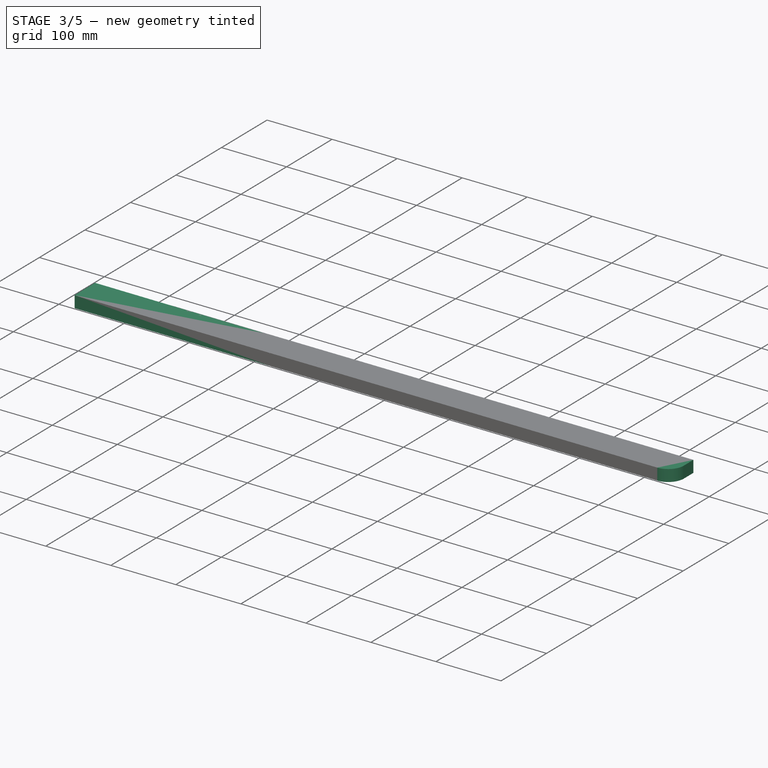
[diagram: stage 3 of 5 — iso view after this stage's code; geometry added in this stage tinted green]
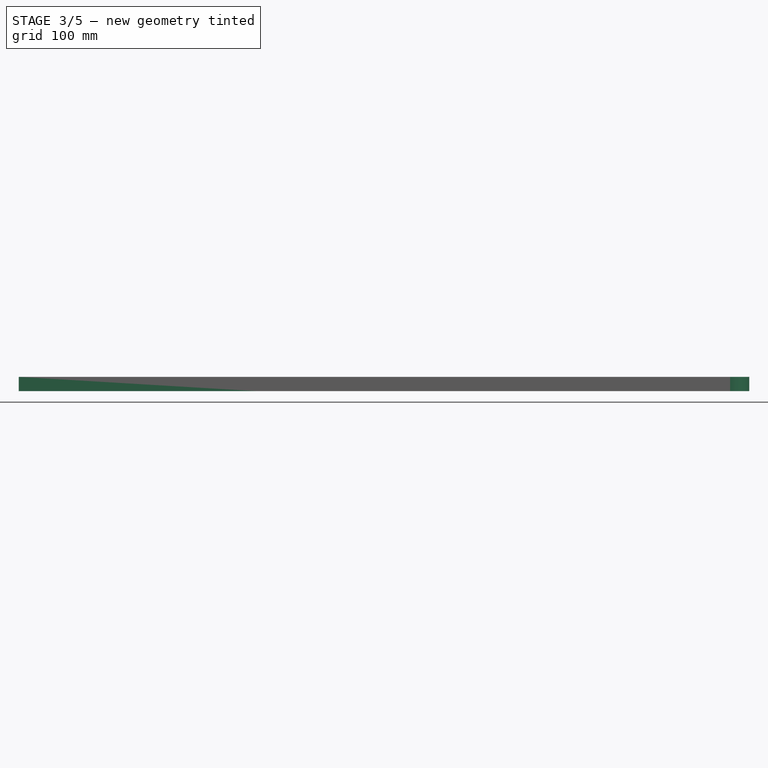
[diagram: stage 3 of 5 — front view after this stage's code; geometry added in this stage tinted green]
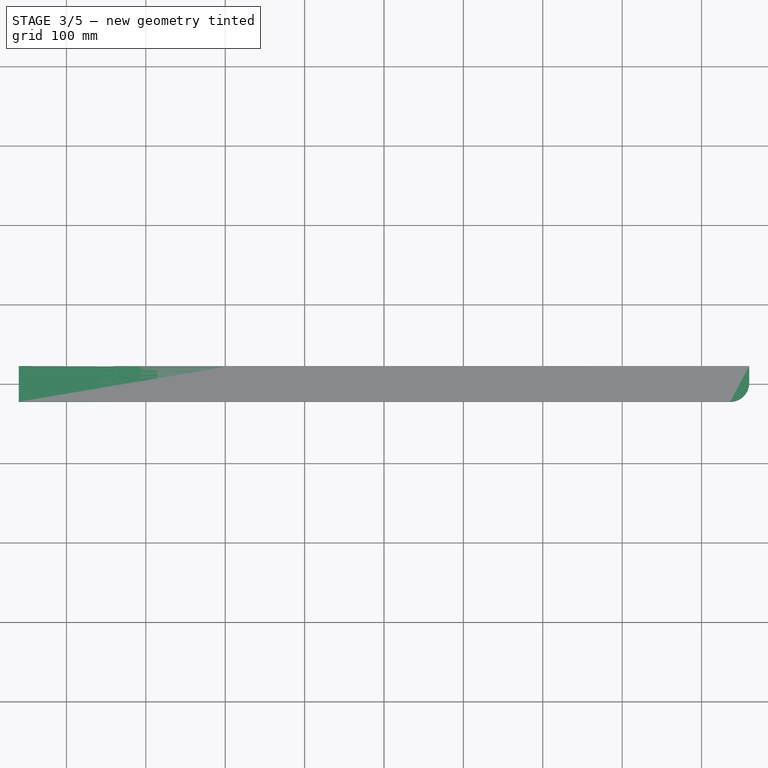
[diagram: stage 3 of 5 — top view after this stage's code; geometry added in this stage tinted green]
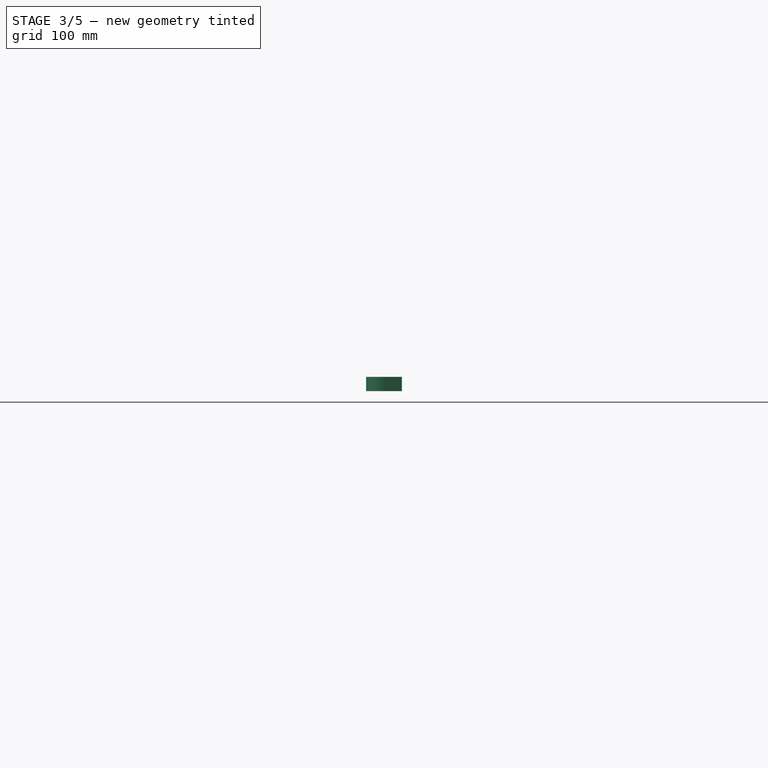
[diagram: stage 3 of 5 — right view after this stage's code; geometry added in this stage tinted green]
FEATURE [PartDesign::Body] Body002  label="72 x 4,5 x 1,8"
  Group = -> [Sketch006,Pad002,Sketch007,Pocket006,Fillet002,Sketch008,Pocket007,Sketch009,Pocket005]
  Origin = -> Origin002
  Tip = -> Pocket005
FEATURE [App::Link] Link015  label="92 X 4,5 X 1,8 (1)"
  LinkPlacement = pos=(0,0,0) rot=(1,0,0;1.5708rad)
  LinkedObject = -> Body003
  Placement = pos=(0,0,0) rot=(1,0,0;1.5708rad)
FEATURE [App::Link] Link016  label="42 X 4,5 X 1,5 (1)"
  LinkPlacement = pos=(-222.5,192,37.5) rot=(0.707107,-0.707107,0;3.14159rad)
  LinkedObject = -> Body004
  Placement = pos=(-222.5,192,37.5) rot=(0.707107,-0.707107,0;3.14159rad)
FEATURE [App::Link] Link017  label="92 X 4,5 X 1,8 (2)"
  LinkPlacement = pos=(-2.742e-13,402,-2.0951e-12) rot=(1,0,0;1.5708rad)
  LinkedObject = -> Body003
  Placement = pos=(-2.742e-13,402,-2.0951e-12) rot=(1,0,0;1.5708rad)
FEATURE [App::Link] Link018  label="42 X 4,5 X 1,5 (2)"
  LinkPlacement = pos=(-137.5,192,-37.5) rot=(0,0,1;1.5708rad)
  LinkedObject = -> Body004
  Placement = pos=(-137.5,192,-37.5) rot=(0,0,1;1.5708rad)
FEATURE [App::Link] Link019  label="p7 (1)"
  LinkPlacement = pos=(410,15,-10) rot=(-1,0,0;4.71239rad)
  LinkedObject = -> Body005
  Placement = pos=(410,15,-10) rot=(-1,0,0;4.71239rad)
FEATURE [App::Link] Link020  label="p7 (2)"
  LinkPlacement = pos=(410,384,-10) rot=(1,0,0;1.5708rad)
  LinkedObject = -> Body005
  Placement = pos=(410,384,-10) rot=(1,0,0;1.5708rad)
FEATURE [App::Link] Link021  label="38,4 X 4,5 X 1,5 (1)"
  LinkPlacement = pos=(437.749,192,-0.83766) rot=(-0.074171,-0.074171,0.994483;1.57633rad)
  LinkedObject = -> Body006
  Placement = pos=(437.749,192,-0.83766) rot=(-0.074171,-0.074171,0.994483;1.57633rad)
FEATURE [App::Link] Link022  label="38,4 X 4,5 X 1,5 (2)"
  LinkPlacement = pos=(382.251,192,-9.16234) rot=(-0.074171,-0.074171,0.994483;1.57633rad)
  LinkedObject = -> Body006
  Placement = pos=(382.251,192,-9.16234) rot=(-0.074171,-0.074171,0.994483;1.57633rad)
FEATURE [Part::FeaturePython] Parts003  # WARN: FeaturePython — macro-defined, semantics opaque (R4)
  Group = -> [Link015,Link016,Link017,Link018,Link019,Link020,Link021,Link022]
  GroupMode = 0
FEATURE [Sketcher::SketchObject] Sketch010
  FullyConstrained = true
  MapMode = 5
  Support = -> [XY_Plane003]
  sketch-geometry (5):
    g0: LineSegment StartX=-460 StartY=22.5 StartZ=0 EndX=-460 EndY=-22.5 EndZ=0
    g1: LineSegment StartX=-460 StartY=-22.5 StartZ=0 EndX=460 EndY=-22.5 EndZ=0
    g2: LineSegment StartX=460 StartY=-22.5 StartZ=0 EndX=460 EndY=22.5 EndZ=0
    g3: LineSegment StartX=460 StartY=22.5 StartZ=0 EndX=-460 EndY=22.5 EndZ=0
    g4: GeomPoint X=0 Y=0 Z=0
  constraints (12):
    c: Coincident(g0,g1)
    c: Coincident(g1,g2)
    c: Coincident(g2,g3)
    c: Coincident(g3,g0)
    c: Horizontal(g1)
    c: Horizontal(g3)
    c: Vertical(g0)
    c: Vertical(g2)
    c: Symmetric(g1,g0,g4)
    c: Coincident(g4,g-1)
    c: DistanceY(g2,g2) = 45
    c: DistanceX(g3,g3) = 920
FEATURE [PartDesign::Pad] Pad003
  Direction = (0,0,1)
  Length = 18
  Length2 = 10
  Profile = -> Sketch010
  ReferenceAxis = -> Sketch010 [N_Axis]
  Type = 0
FEATURE [Sketcher::SketchObject] Sketch011
  FullyConstrained = true
  MapMode = 5
  Placement = pos=(0,0,18) rot=(0,0,1;0rad)
  Support = -> [Pad003]
  sketch-geometry (1):
    g0: Circle CenterX=0 CenterY=0 CenterZ=0 NormalX=0 NormalY=0 NormalZ=1 AngleXU=0 Radius=3.5
  constraints (2):
    c: Coincident(g0,g-1)
    c: Diameter(g0) = 7
FEATURE [PartDesign::Pocket] Pocket009
  BaseFeature = -> Pad003
  Direction = (0,0,-1)
  Length = 5
  Length2 = 5
  Profile = -> Sketch011
  ReferenceAxis = -> Sketch011 [N_Axis]
  Type = 1
FEATURE [PartDesign::Fillet] Fillet003
  Base = -> Pocket009 [Edge8]
  BaseFeature = -> Pocket009
  Radius = 24
  SupportTransform = false
  UseAllEdges = false
FEATURE [Sketcher::SketchObject] Sketch012
  ExternalGeometry = -> [Fillet003]
  FullyConstrained = true
  MapMode = 5
  Placement = pos=(0,-22.5,0) rot=(1,0,0;1.5708rad)
  Support = -> [Fillet003]
  sketch-geometry (3):
    g0: LineSegment StartX=-160 StartY=18 StartZ=0 EndX=-160 EndY=0 EndZ=0
    g1: LineSegment StartX=-160 StartY=0 StartZ=0 EndX=-144.412 EndY=9 EndZ=0
    g2: LineSegment StartX=-144.412 StartY=9 StartZ=0 EndX=-160 EndY=18 EndZ=0
  constraints (9):
    c: PointOnObject(g0,g-3)
    c: PointOnObject(g0,g-4)
    c: Vertical(g0)
    c: DistanceX(g-3,g0) = 300
    c: Coincident(g0,g1)
    c: Coincident(g1,g2)
    c: Coincident(g2,g0)
    c: Equal(g2,g1)
    c: Equal(g0,g1)
FEATURE [PartDesign::Pocket] Pocket010
  BaseFeature = -> Fillet003
  Direction = (0,1,-2e-16)
  Length = 1
  Length2 = 5
  Profile = -> Sketch012
  ReferenceAxis = -> Sketch012 [N_Axis]
  Type = 0
FEATURE [Sketcher::SketchObject] Sketch013
  ExternalGeometry = -> [Pocket010]
  FullyConstrained = true
  MapMode = 5
  Placement = pos=(0,22.5,0) rot=(0,0.707107,0.707107;3.14159rad)
  Support = -> [Pocket010]
  sketch-geometry (3):
    g0: LineSegment StartX=200 StartY=18 StartZ=0 EndX=200 EndY=0 EndZ=0
    g1: LineSegment StartX=200 StartY=0 StartZ=0 EndX=215.588 EndY=9 EndZ=0
    g2: LineSegment StartX=215.588 StartY=9 StartZ=0 EndX=200 EndY=18 EndZ=0
  constraints (9):
    c: PointOnObject(g0,g-3)
    c: PointOnObject(g0,g-4)
    c: Vertical(g0)
    c: Coincident(g0,g1)
    c: Coincident(g1,g2)
    c: Coincident(g2,g0)
    c: Equal(g0,g2)
    c: Equal(g2,g1)
    c: DistanceX(g0,g-3) = 260
FEATURE [PartDesign::Pocket] Pocket011
  BaseFeature = -> Pocket010
  Direction = (0,-1,2e-16)
  Length = 1
  Length2 = 5
  Profile = -> Sketch013
  ReferenceAxis = -> Sketch013 [N_Axis]
  Type = 0
FEATURE [PartDesign::Body] Body003  label="92 x 4,5 x 1,8"
  Group = -> [Sketch010,Pad003,Sketch011,Pocket009,Fillet003,Sketch012,Pocket010,Sketch013,Pocket011,Sketch014,Pocket008]
  Origin = -> Origin003
  Tip = -> Pocket008
FEATURE [Sketcher::SketchObject] Sketch015
  FullyConstrained = true
  MapMode = 5
  Support = -> [XY_Plane004]
  sketch-geometry (5):
    g0: LineSegment StartX=-210 StartY=22.5 StartZ=0 EndX=-210 EndY=-22.5 EndZ=0
    g1: LineSegment StartX=-210 StartY=-22.5 StartZ=0 EndX=210 EndY=-22.5 EndZ=0
    g2: LineSegment StartX=210 StartY=-22.5 StartZ=0 EndX=210 EndY=22.5 EndZ=0
    g3: LineSegment StartX=210 StartY=22.5 StartZ=0 EndX=-210 EndY=22.5 EndZ=0
    g4: GeomPoint X=0 Y=0 Z=0
  constraints (12):
    c: Coincident(g0,g1)
    c: Coincident(g1,g2)
    c: Coincident(g2,g3)
    c: Coincident(g3,g0)
    c: Horizontal(g1)
    c: Horizontal(g3)
    c: Vertical(g0)
    c: Vertical(g2)
    c: Symmetric(g1,g0,g4)
    c: Coincident(g4,g-1)
    c: DistanceY(g0,g0) = 45
    c: DistanceX(g3,g3) = 420
FEATURE [PartDesign::Pad] Pad004
  Direction = (0,0,1)
  Length = 15
  Length2 = 10
  Profile = -> Sketch015
  ReferenceAxis = -> Sketch015 [N_Axis]
  Type = 0
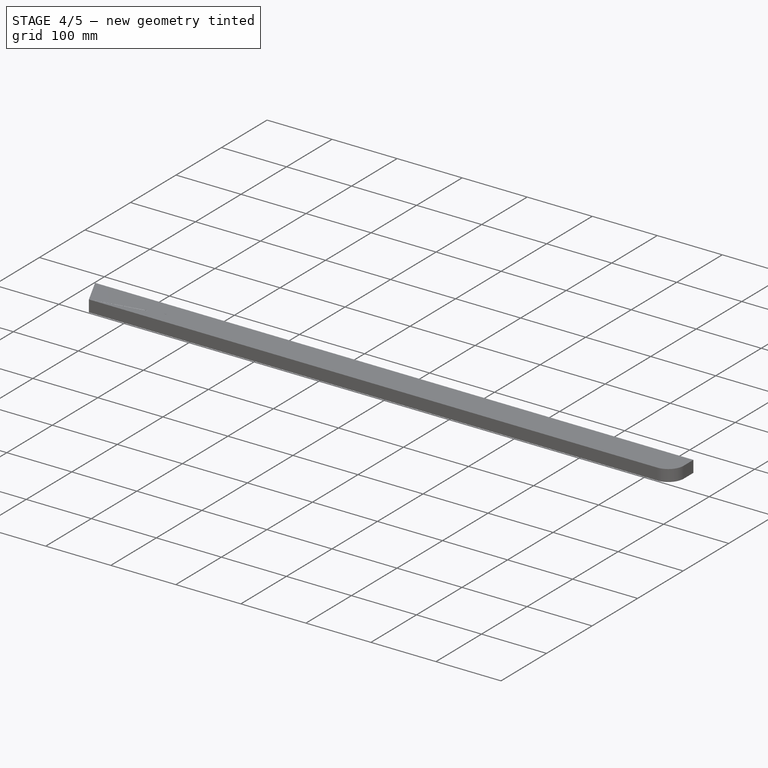
[diagram: stage 4 of 5 — iso view after this stage's code; geometry added in this stage tinted green]
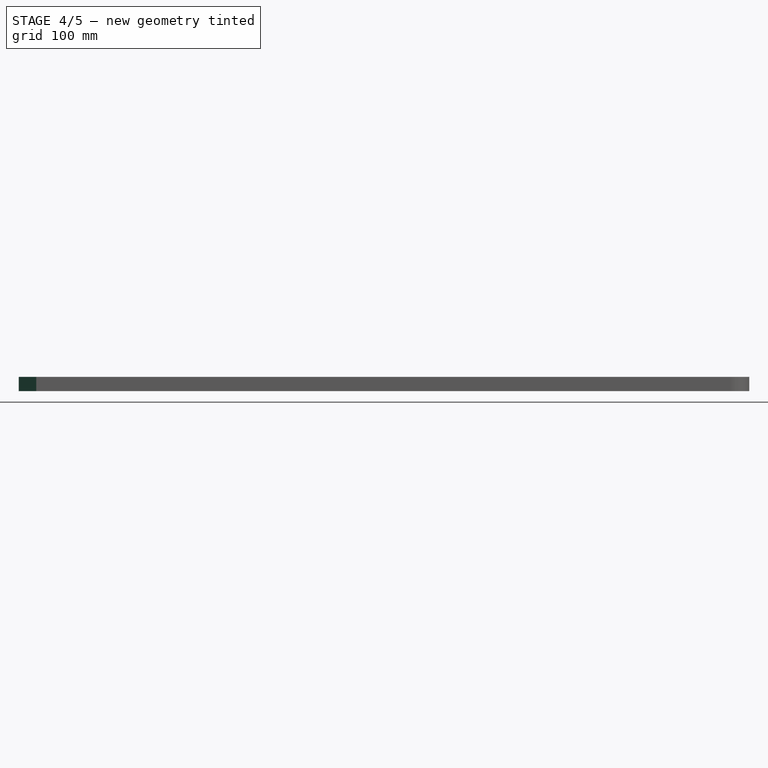
[diagram: stage 4 of 5 — front view after this stage's code; geometry added in this stage tinted green]
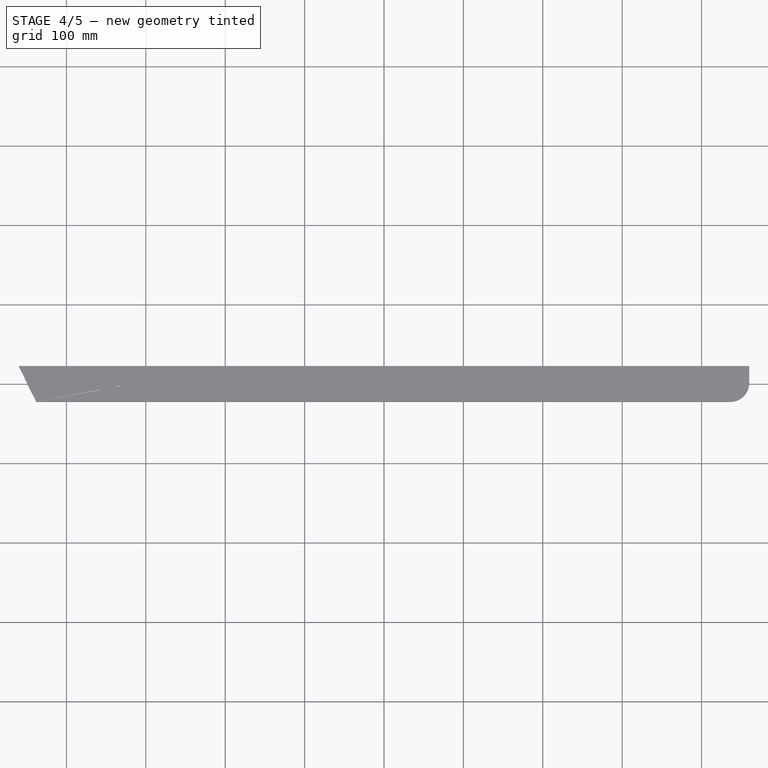
[diagram: stage 4 of 5 — top view after this stage's code; geometry added in this stage tinted green]
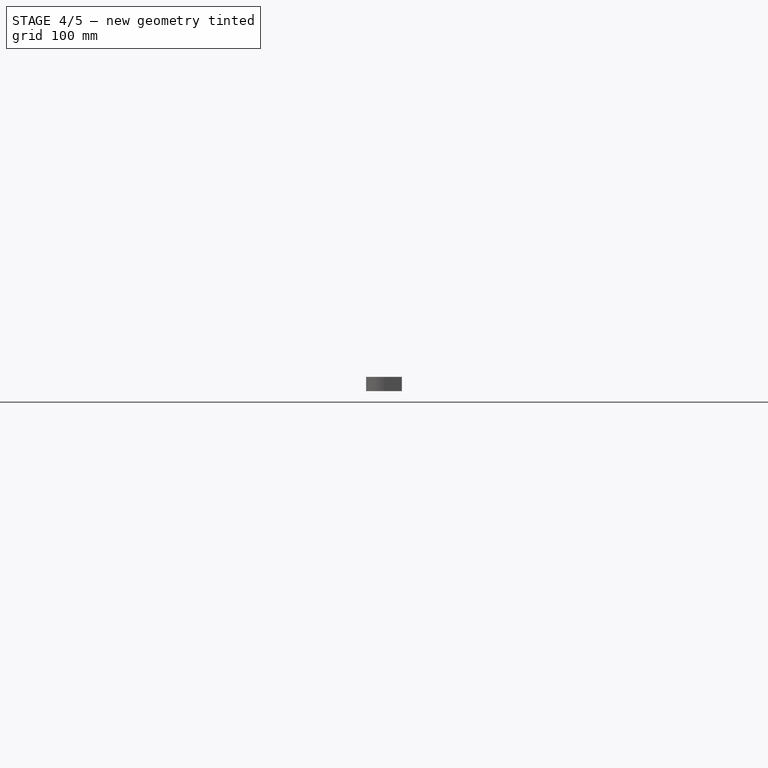
[diagram: stage 4 of 5 — right view after this stage's code; geometry added in this stage tinted green]
FEATURE [App::Link] Link  label="assento"
  LinkPlacement = pos=(-8.28e-14,-1.1546e-12,-3.0345e-12) rot=(0,0,1;0rad)
  LinkedObject = -> Assembly001
  Placement = pos=(-8.28e-14,-1.1546e-12,-3.0345e-12) rot=(0,0,1;0rad)
FEATURE [App::Link] Link001  label="encosto"
  LinkPlacement = pos=(155,-11.5,7.5) rot=(0,-1,0;1.11843rad)
  LinkedObject = -> Assembly003
  Placement = pos=(155,-11.5,7.5) rot=(0,-1,0;1.11843rad)
FEATURE [App::Link] Link002  label="pe"
  LinkPlacement = pos=(119.646,331.5,-191.286) rot=(-0.949977,0,0.312319;3.14159rad)
  LinkedObject = -> Assembly002
  Placement = pos=(119.646,331.5,-191.286) rot=(-0.949977,0,0.312319;3.14159rad)
FEATURE [Part::FeaturePython] Parts  # WARN: FeaturePython — macro-defined, semantics opaque (R4)
  Group = -> [Link001,Link,Link002]
  GroupMode = 0
FEATURE [App::Link] Link003  label="35 X 4,5 X 1,8 (1)"
  LinkPlacement = pos=(2.5,10.5,7.5) rot=(1,0,0;1.5708rad)
  LinkedObject = -> Body
  Placement = pos=(2.5,10.5,7.5) rot=(1,0,0;1.5708rad)
FEATURE [App::Link] Link004  label="37,5 X 4,5 X 1,5 (1)"
  LinkPlacement = pos=(-150,180,30) rot=(0,0,1;1.5708rad)
  LinkedObject = -> Body001
  Placement = pos=(-150,180,30) rot=(0,0,1;1.5708rad)
FEATURE [App::Link] Link005  label="37,5 X 4,5 X 1,5 (2)"
  LinkPlacement = pos=(155,180,30) rot=(0,0,1;1.5708rad)
  LinkedObject = -> Body001
  Placement = pos=(155,180,30) rot=(0,0,1;1.5708rad)
FEATURE [App::Link] Link006  label="35 X 4,5 X 1,8 (2)"
  LinkPlacement = pos=(2.5,367.5,7.5) rot=(1,0,0;1.5708rad)
  LinkedObject = -> Body
  Placement = pos=(2.5,367.5,7.5) rot=(1,0,0;1.5708rad)
FEATURE [App::Link] Link007  label="37,5 X 4,5 X 1,5 (3)"
  LinkPlacement = pos=(105,180,30) rot=(0,0,1;1.5708rad)
  LinkedObject = -> Body001
  Placement = pos=(105,180,30) rot=(0,0,1;1.5708rad)
FEATURE [App::Link] Link008  label="37,5 X 4,5 X 1,5 (4)"
  LinkPlacement = pos=(55,180,30) rot=(0,0,1;1.5708rad)
  LinkedObject = -> Body001
  Placement = pos=(55,180,30) rot=(0,0,1;1.5708rad)
FEATURE [App::Link] Link009  label="37,5 X 4,5 X 1,5 (5)"
  LinkPlacement = pos=(5,180,30) rot=(0,0,1;1.5708rad)
  LinkedObject = -> Body001
  Placement = pos=(5,180,30) rot=(0,0,1;1.5708rad)
FEATURE [App::Link] Link010  label="37,5 X 4,5 X 1,5 (6)"
  LinkPlacement = pos=(-45,180,30) rot=(0,0,1;1.5708rad)
  LinkedObject = -> Body001
  Placement = pos=(-45,180,30) rot=(0,0,1;1.5708rad)
FEATURE [App::Link] Link011  label="37,5 X 4,5 X 1,5 (7)"
  LinkPlacement = pos=(-95,180,30) rot=(0,0,1;1.5708rad)
  LinkedObject = -> Body001
  Placement = pos=(-95,180,30) rot=(0,0,1;1.5708rad)
FEATURE [Part::FeaturePython] Parts001  # WARN: FeaturePython — macro-defined, semantics opaque (R4)
  Group = -> [Link003,Link004,Link005,Link006,Link007,Link008,Link009,Link010,Link011]
  GroupMode = 0
FEATURE [App::FeaturePython] Relation004  label="37,5 X 4,5 X 1,5 (3)"  # WARN: FeaturePython — macro-defined, semantics opaque (R4)
  Count = 0
  Index = 0
  Part = -> Link007
FEATURE [App::FeaturePython] Relation005  label="37,5 X 4,5 X 1,5 (4)"  # WARN: FeaturePython — macro-defined, semantics opaque (R4)
  Count = 0
  Index = 0
  Part = -> Link008
FEATURE [App::FeaturePython] Relation006  label="37,5 X 4,5 X 1,5 (5)"  # WARN: FeaturePython — macro-defined, semantics opaque (R4)
  Count = 0
  Index = 0
  Part = -> Link009
FEATURE [App::FeaturePython] Relation007  label="37,5 X 4,5 X 1,5 (6)"  # WARN: FeaturePython — macro-defined, semantics opaque (R4)
  Count = 0
  Index = 0
  Part = -> Link010
FEATURE [App::FeaturePython] Relation008  label="37,5 X 4,5 X 1,5 (7)"  # WARN: FeaturePython — macro-defined, semantics opaque (R4)
  Count = 0
  Index = 0
  Part = -> Link011
FEATURE [Sketcher::SketchObject] Sketch
  FullyConstrained = true
  MapMode = 5
  Support = -> [XY_Plane]
  sketch-geometry (5):
    g0: LineSegment StartX=-175 StartY=22.5 StartZ=0 EndX=-175 EndY=-22.5 EndZ=0
    g1: LineSegment StartX=-175 StartY=-22.5 StartZ=0 EndX=175 EndY=-22.5 EndZ=0
    g2: LineSegment StartX=175 StartY=-22.5 StartZ=0 EndX=175 EndY=22.5 EndZ=0
    g3: LineSegment StartX=175 StartY=22.5 StartZ=0 EndX=-175 EndY=22.5 EndZ=0
    g4: GeomPoint X=0 Y=0 Z=0
  constraints (12):
    c: Coincident(g0,g1)
    c: Coincident(g1,g2)
    c: Coincident(g2,g3)
    c: Coincident(g3,g0)
    c: Horizontal(g1)
    c: Horizontal(g3)
    c: Vertical(g0)
    c: Vertical(g2)
    c: Symmetric(g1,g0,g4)
    c: Coincident(g4,g-1)
    c: DistanceY(g0,g0) = 45
    c: DistanceX(g3,g3) = 350
FEATURE [PartDesign::Pad] Pad
  Direction = (0,0,1)
  Length = 18
  Length2 = 10
  Profile = -> Sketch
  ReferenceAxis = -> Sketch [N_Axis]
  Type = 0
FEATURE [Sketcher::SketchObject] Sketch001
  ExternalGeometry = -> [Pad]
  FullyConstrained = true
  MapMode = 5
  Placement = pos=(0,0,18) rot=(0,0,1;0rad)
  Support = -> [Pad]
  sketch-geometry (2):
    g0: Circle CenterX=-152.5 CenterY=0 CenterZ=0 NormalX=0 NormalY=0 NormalZ=1 AngleXU=0 Radius=3.5
    g1: Circle CenterX=-152.5 CenterY=0 CenterZ=0 NormalX=0 NormalY=0 NormalZ=1 AngleXU=0 Radius=8.5
  constraints (5):
    c: PointOnObject(g0,g-1)
    c: Diameter(g0) = 7
    c: DistanceX(g-3,g0) = 22.5
    c: Coincident(g1,g0)
    c: Diameter(g1) = 17
FEATURE [PartDesign::Pocket] Pocket
  BaseFeature = -> Pad
  Direction = (0,0,-1)
  Length = 2
  Length2 = 5
  Profile = -> Sketch001
  ReferenceAxis = -> Sketch001 [N_Axis]
  Type = 0
FEATURE [PartDesign::Body] Body  label="35 x 4,5 x 1,8"
  Group = -> [Sketch,Pad,Sketch001,Pocket,Pocket001,LinearPattern,Sketch002,Pocket002,Fillet,Sketch003,Pocket003,Sketch004,Pocket004]
  Origin = -> Origin
  Tip = -> Pocket004
FEATURE [Sketcher::SketchObject] Sketch005
  FullyConstrained = true
  MapMode = 5
  Support = -> [XY_Plane001]
  sketch-geometry (5):
    g0: LineSegment StartX=-187.5 StartY=22.5 StartZ=0 EndX=-187.5 EndY=-22.5 EndZ=0
    g1: LineSegment StartX=-187.5 StartY=-22.5 StartZ=0 EndX=187.5 EndY=-22.5 EndZ=0
    g2: LineSegment StartX=187.5 StartY=-22.5 StartZ=0 EndX=187.5 EndY=22.5 EndZ=0
    g3: LineSegment StartX=187.5 StartY=22.5 StartZ=0 EndX=-187.5 EndY=22.5 EndZ=0
    g4: GeomPoint X=0 Y=0 Z=0
  constraints (12):
    c: Coincident(g0,g1)
    c: Coincident(g1,g2)
    c: Coincident(g2,g3)
    c: Coincident(g3,g0)
    c: Horizontal(g1)
    c: Horizontal(g3)
    c: Vertical(g0)
    c: Vertical(g2)
    c: Symmetric(g1,g0,g4)
    c: Coincident(g4,g-1)
    c: DistanceY(g0,g0) = 45
    c: DistanceX(g3,g3) = 375
FEATURE [PartDesign::Pad] Pad001
  Direction = (0,0,1)
  Length = 15
  Length2 = 10
  Profile = -> Sketch005
  ReferenceAxis = -> Sketch005 [N_Axis]
  Type = 0
FEATURE [PartDesign::Fillet] Fillet001
  Base = -> Pad001 [Edge7,Edge12]
  BaseFeature = -> Pad001
  Radius = 5
  SupportTransform = false
  UseAllEdges = false
FEATURE [Sketcher::SketchObject] Sketch014
  ExternalGeometry = -> [Pocket011]
  FullyConstrained = true
  MapMode = 5
  Placement = pos=(0,0,18) rot=(0,0,1;0rad)
  Support = -> [Pocket011]
  sketch-geometry (3):
    g0: LineSegment StartX=-460 StartY=-22.5 StartZ=0 EndX=-438 EndY=-22.5 EndZ=0
    g1: LineSegment StartX=-438 StartY=-22.5 StartZ=0 EndX=-460 EndY=22.5 EndZ=0
    g2: LineSegment StartX=-460 StartY=22.5 StartZ=0 EndX=-460 EndY=-22.5 EndZ=0
  constraints (7):
    c: Coincident(g-3,g0)
    c: PointOnObject(g0,g-3)
    c: Coincident(g0,g1)
    c: Coincident(g1,g-4)
    c: Coincident(g1,g2)
    c: Coincident(g2,g0)
    c: DistanceX(g0,g0) = 22
FEATURE [PartDesign::Pocket] Pocket008
  BaseFeature = -> Pocket011
  Direction = (0,0,-1)
  Length = 5
  Length2 = 5
  Profile = -> Sketch014
  ReferenceAxis = -> Sketch014 [N_Axis]
  Type = 1
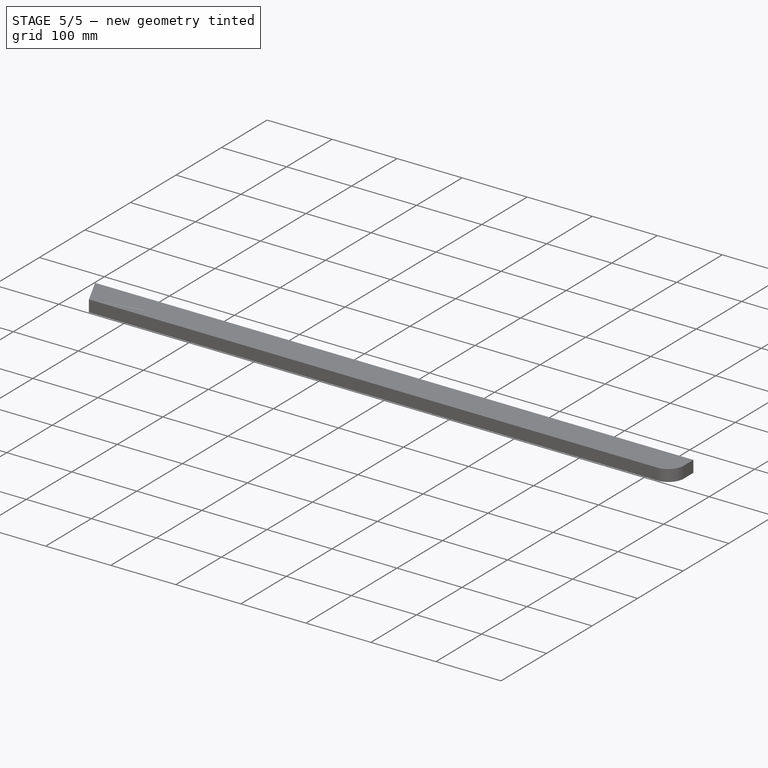
[diagram: stage 5 of 5 — iso view after this stage's code; geometry added in this stage tinted green]
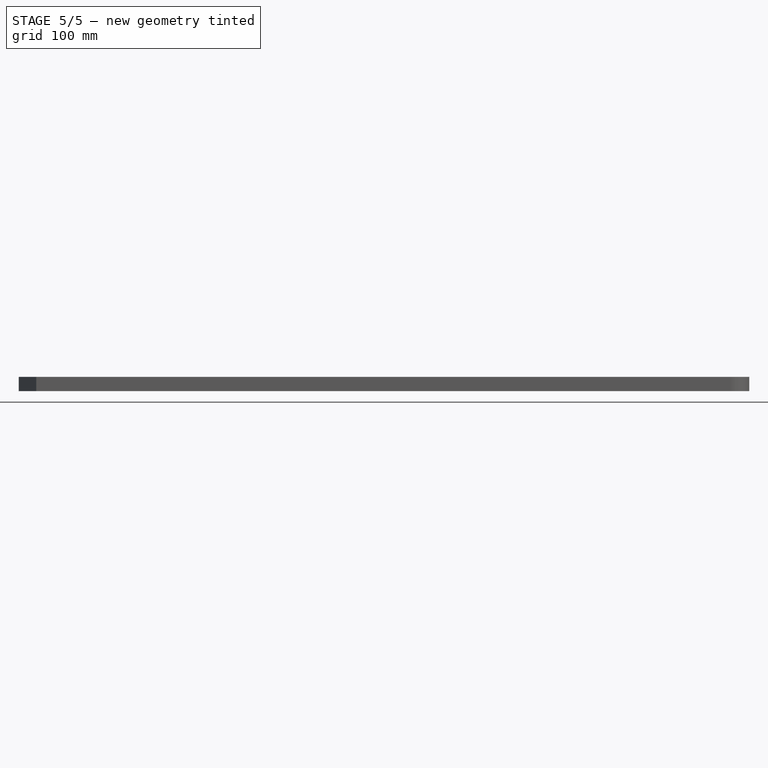
[diagram: stage 5 of 5 — front view after this stage's code; geometry added in this stage tinted green]
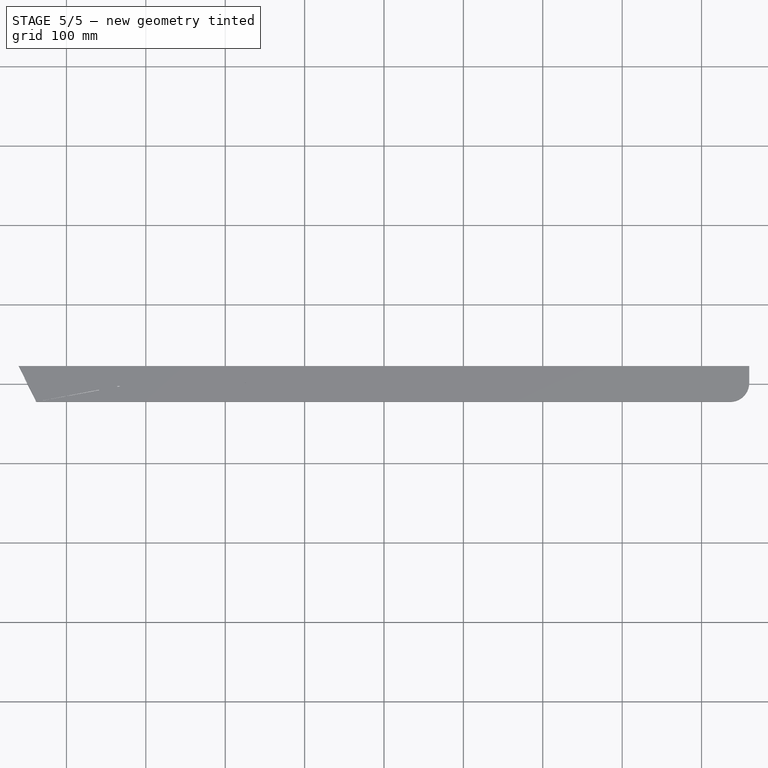
[diagram: stage 5 of 5 — top view after this stage's code; geometry added in this stage tinted green]
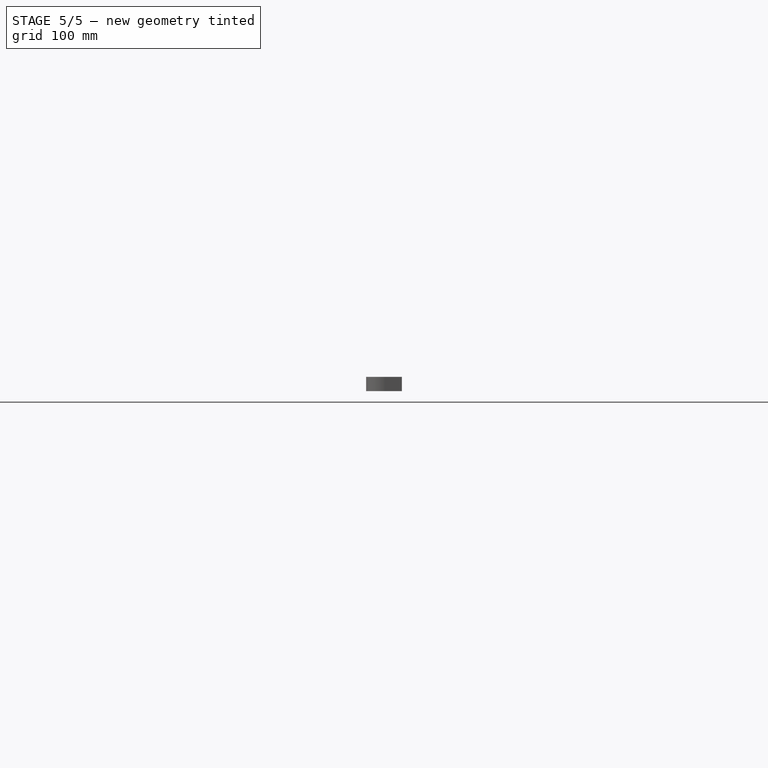
[diagram: stage 5 of 5 — right view after this stage's code; geometry added in this stage tinted green]
FEATURE [PartDesign::Pocket] Pocket001
  BaseFeature = -> Pocket
  Direction = (0,0,-1)
  Length = 5
  Length2 = 5
  Profile = -> Pocket [Edge18]
  Type = 1
FEATURE [PartDesign::LinearPattern] LinearPattern
  BaseFeature = -> Pocket001
  Direction = -> X_Axis
  Length = 305
  Occurrences = 2
  Originals = -> [Pocket001]
FEATURE [Sketcher::SketchObject] Sketch002
  ExternalGeometry = -> [LinearPattern]
  FullyConstrained = true
  MapMode = 5
  Placement = pos=(0,0,0) rot=(1,0,0;3.14159rad)
  Support = -> [LinearPattern]
  sketch-geometry (1):
    g0: Circle CenterX=152.5 CenterY=0 CenterZ=0 NormalX=0 NormalY=0 NormalZ=1 AngleXU=0 Radius=10
  constraints (2):
    c: Coincident(g0,g-3)
    c: Diameter(g0) = 20
FEATURE [PartDesign::Pocket] Pocket002
  BaseFeature = -> LinearPattern
  Direction = (0,0,1)
  Length = 2
  Length2 = 5
  Profile = -> Sketch002
  ReferenceAxis = -> Sketch002 [N_Axis]
  Type = 0
FEATURE [PartDesign::Fillet] Fillet
  Base = -> Pocket002 [Edge2,Edge8]
  BaseFeature = -> Pocket002
  Radius = 24
  SupportTransform = false
  UseAllEdges = false
FEATURE [Sketcher::SketchObject] Sketch003
  ExternalGeometry = -> [Fillet]
  FullyConstrained = true
  MapMode = 5
  Placement = pos=(0,0,18) rot=(0,0,1;0rad)
  Support = -> [Fillet]
  sketch-geometry (1):
    g0: Circle CenterX=152.5 CenterY=0 CenterZ=0 NormalX=0 NormalY=0 NormalZ=1 AngleXU=0 Radius=7.5
  constraints (2):
    c: Coincident(g0,g-3)
    c: Diameter(g0) = 15
FEATURE [PartDesign::Pocket] Pocket003
  BaseFeature = -> Fillet
  Direction = (0,0,-1)
  Length = 2
  Length2 = 5
  Profile = -> Sketch003
  ReferenceAxis = -> Sketch003 [N_Axis]
  Type = 0
FEATURE [Sketcher::SketchObject] Sketch004
  ExternalGeometry = -> [Pocket003]
  FullyConstrained = true
  MapMode = 5
  Placement = pos=(0,0,0) rot=(1,0,0;3.14159rad)
  Support = -> [Pocket003]
  sketch-geometry (1):
    g0: Circle CenterX=-152.5 CenterY=0 CenterZ=0 NormalX=0 NormalY=0 NormalZ=1 AngleXU=0 Radius=7.5
  constraints (2):
    c: Coincident(g0,g-3)
    c: Diameter(g0) = 15
FEATURE [PartDesign::Pocket] Pocket004
  BaseFeature = -> Pocket003
  Direction = (0,0,1)
  Length = 2
  Length2 = 5
  Profile = -> Sketch004
  ReferenceAxis = -> Sketch004 [N_Axis]
  Type = 0
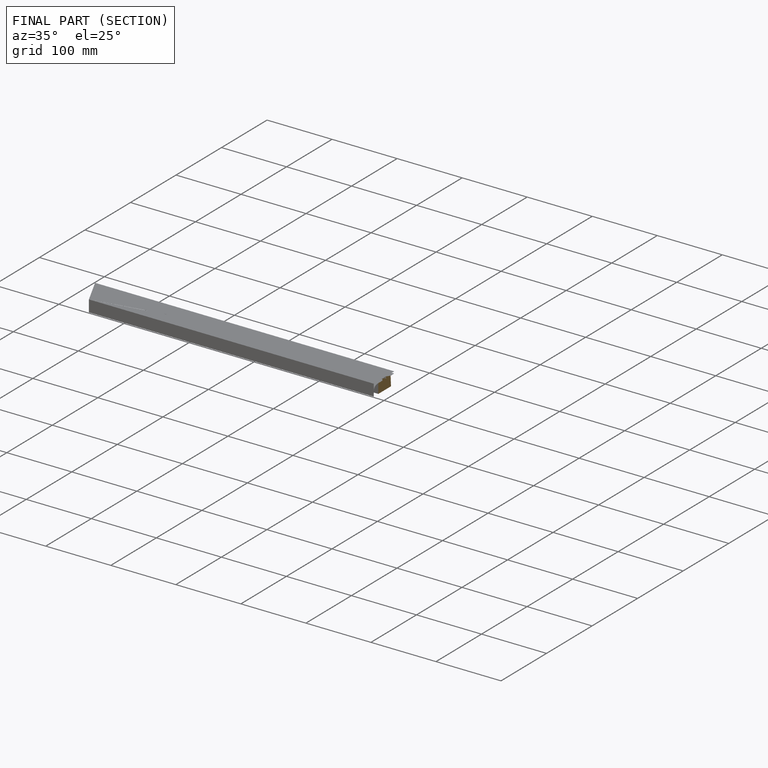
[diagram: finished part — half-section view (interior)]
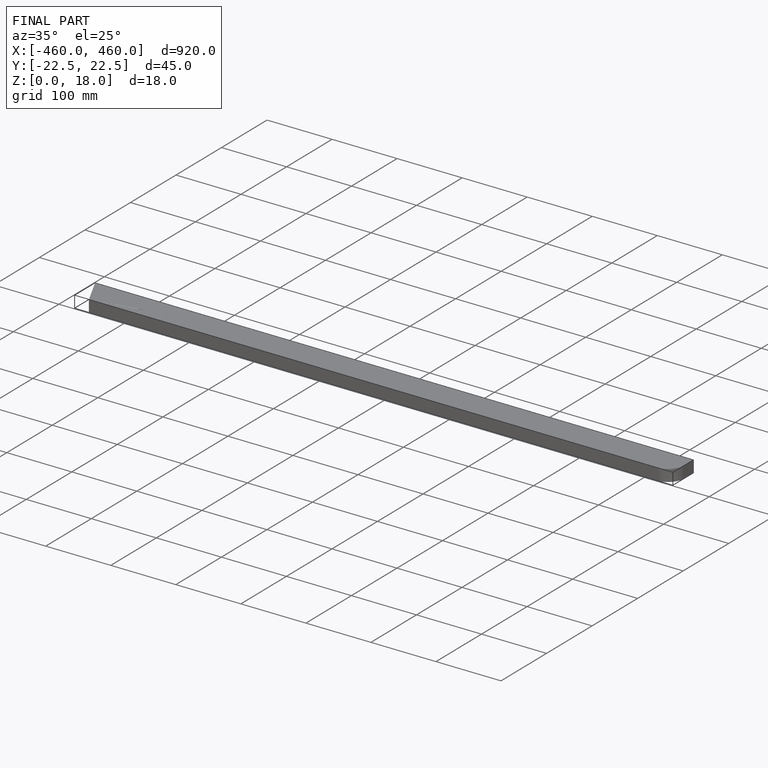
[diagram: finished part — iso view with bounding-box wireframe]
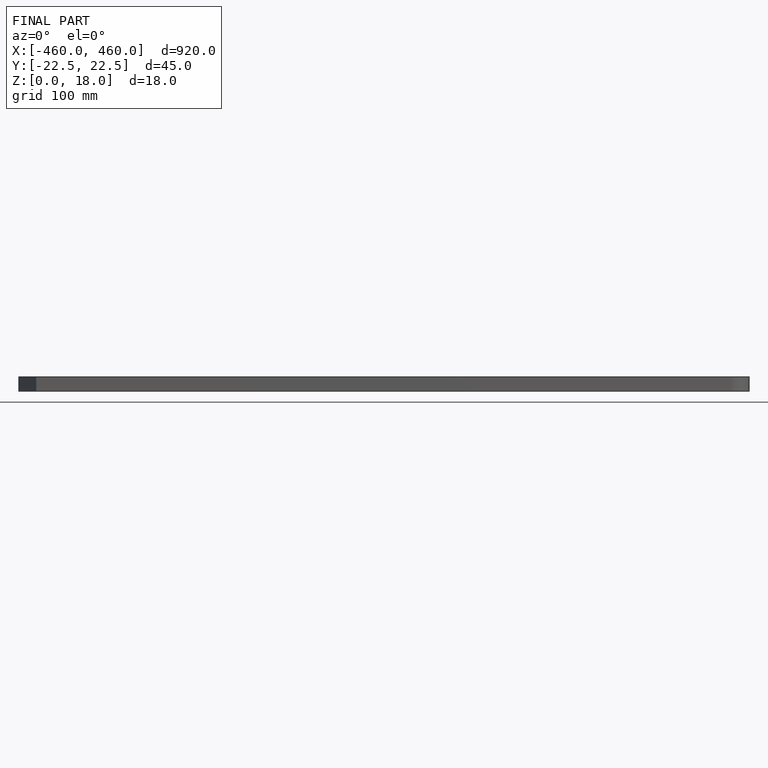
[diagram: finished part — front view with bounding-box wireframe]
